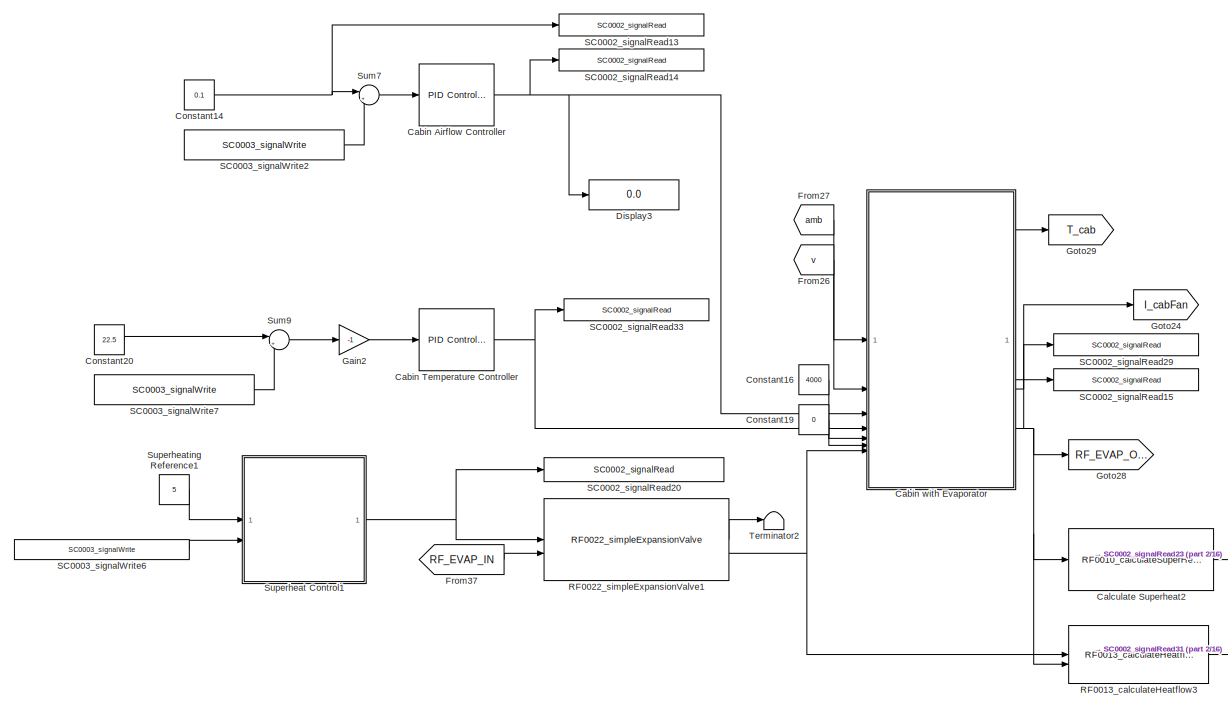
[diagram: root canvas - part 1/16, top center region]
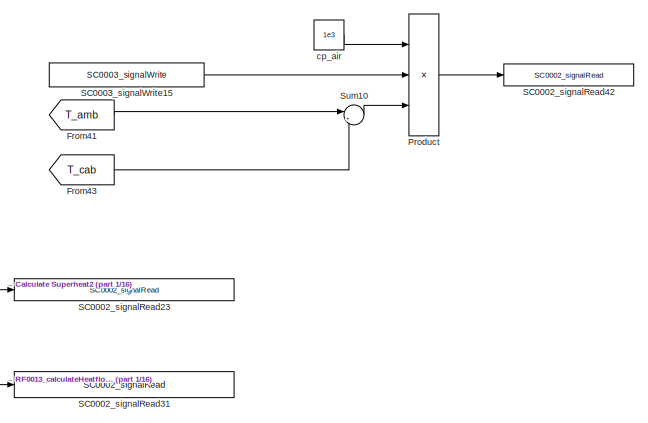
[diagram: root canvas - part 2/16, top right region]
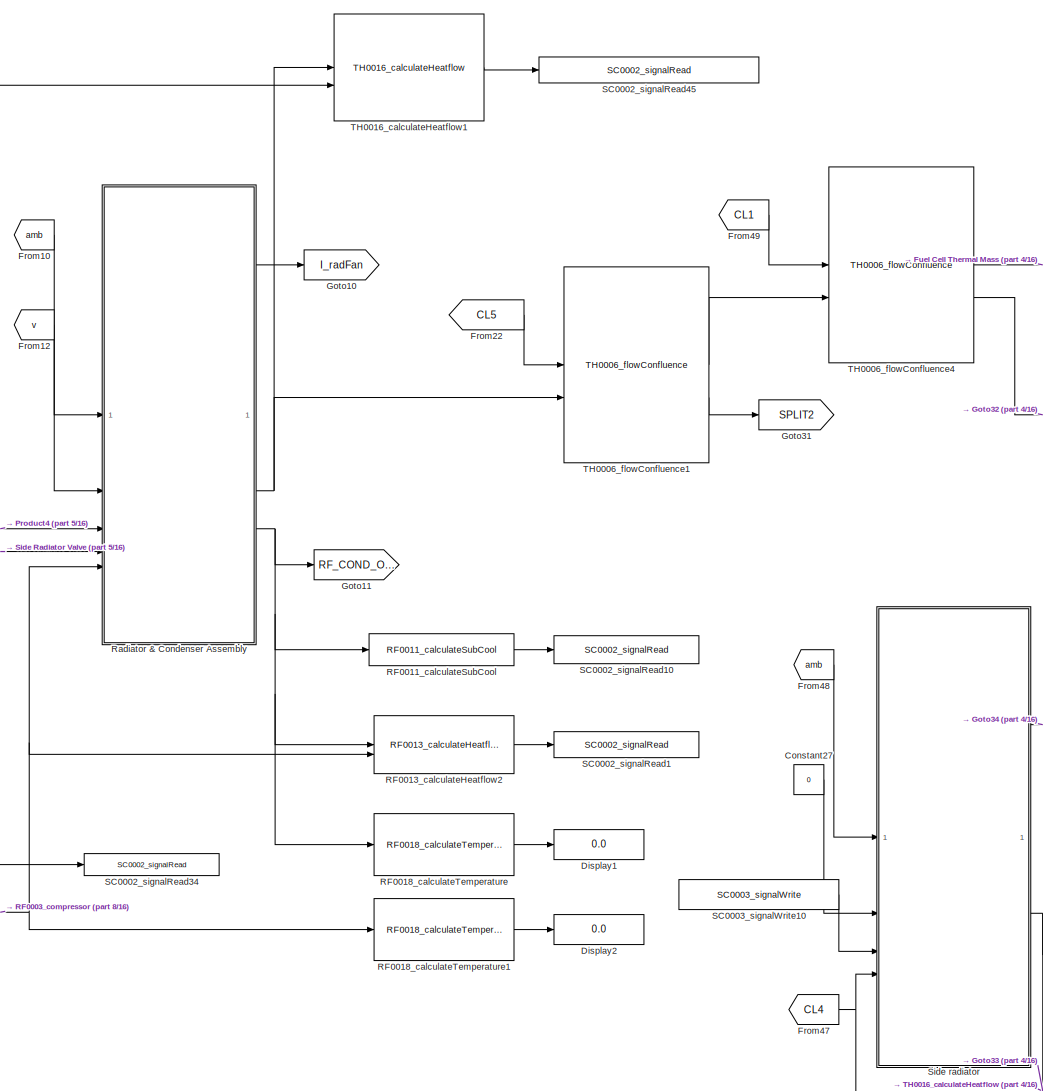
[diagram: root canvas - part 3/16, middle right region]
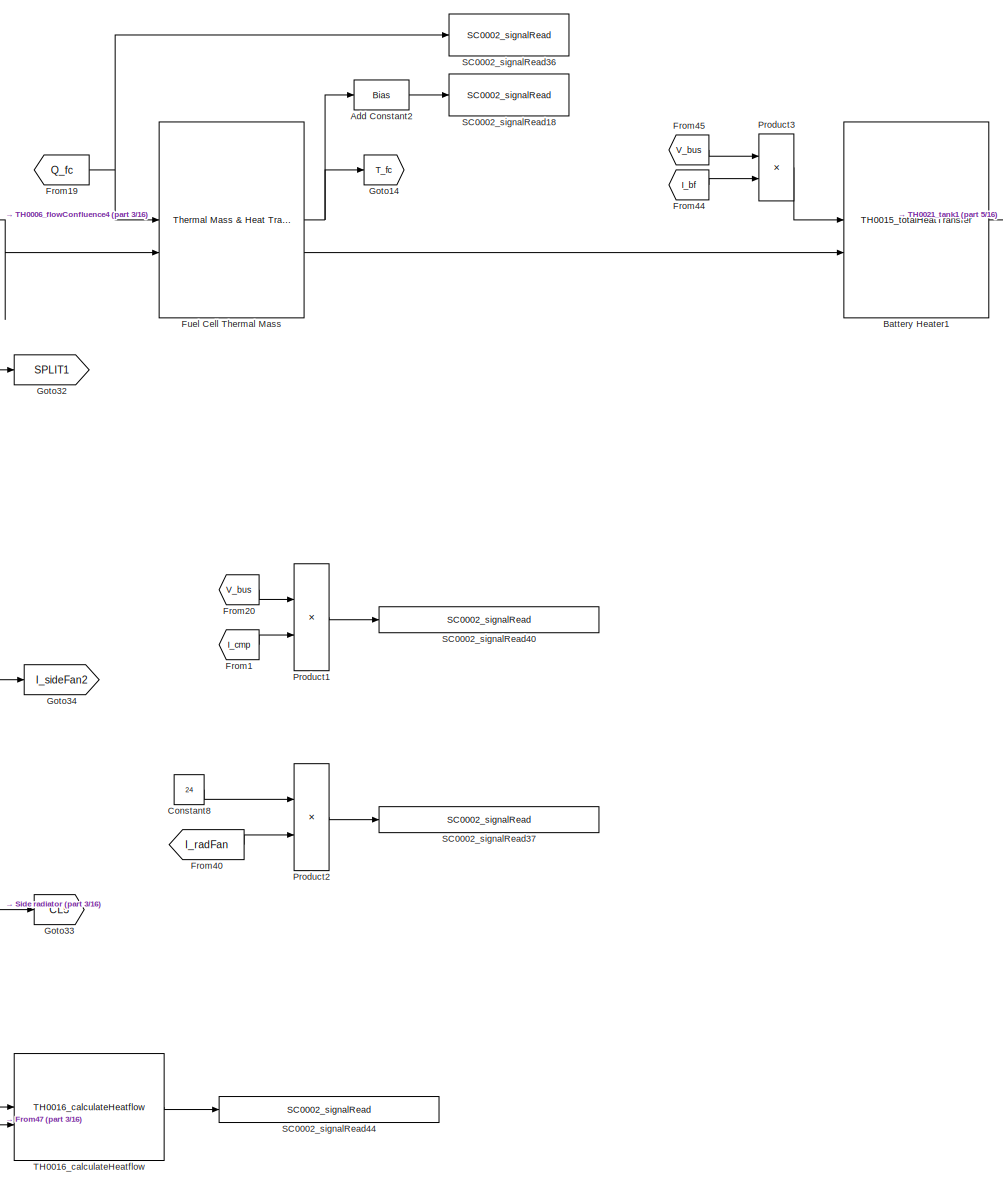
[diagram: root canvas - part 4/16, middle right region]
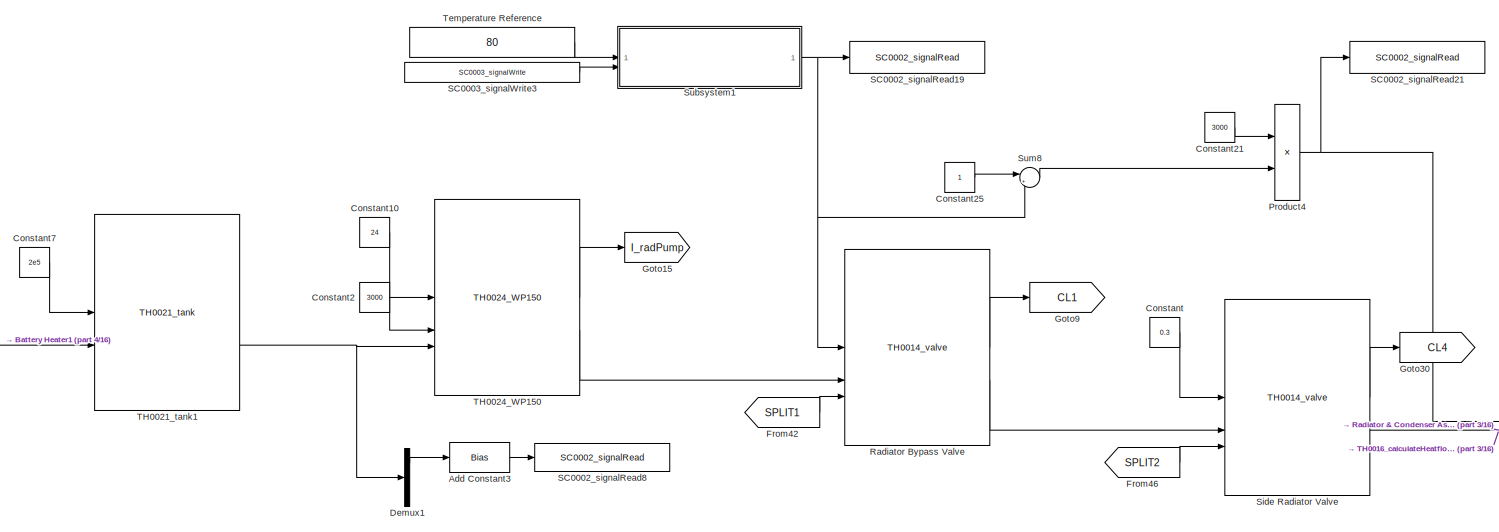
[diagram: root canvas - part 5/16, top center region]
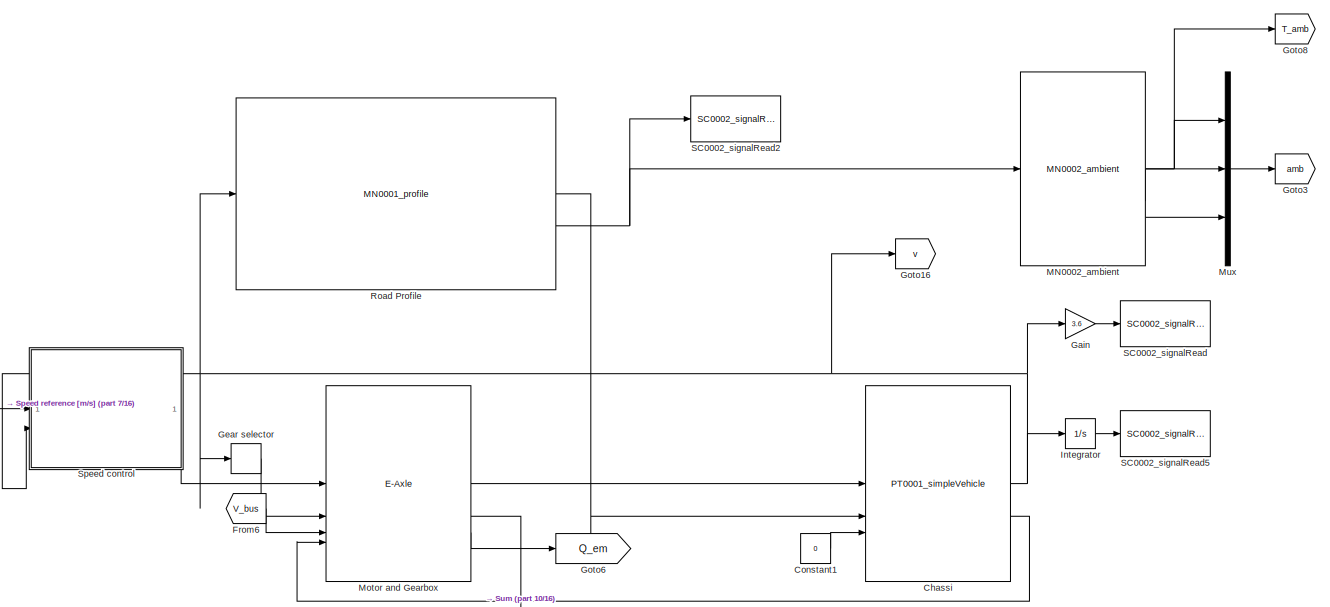
[diagram: root canvas - part 6/16, middle left region]
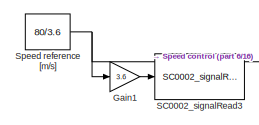
[diagram: root canvas - part 7/16, middle left region]
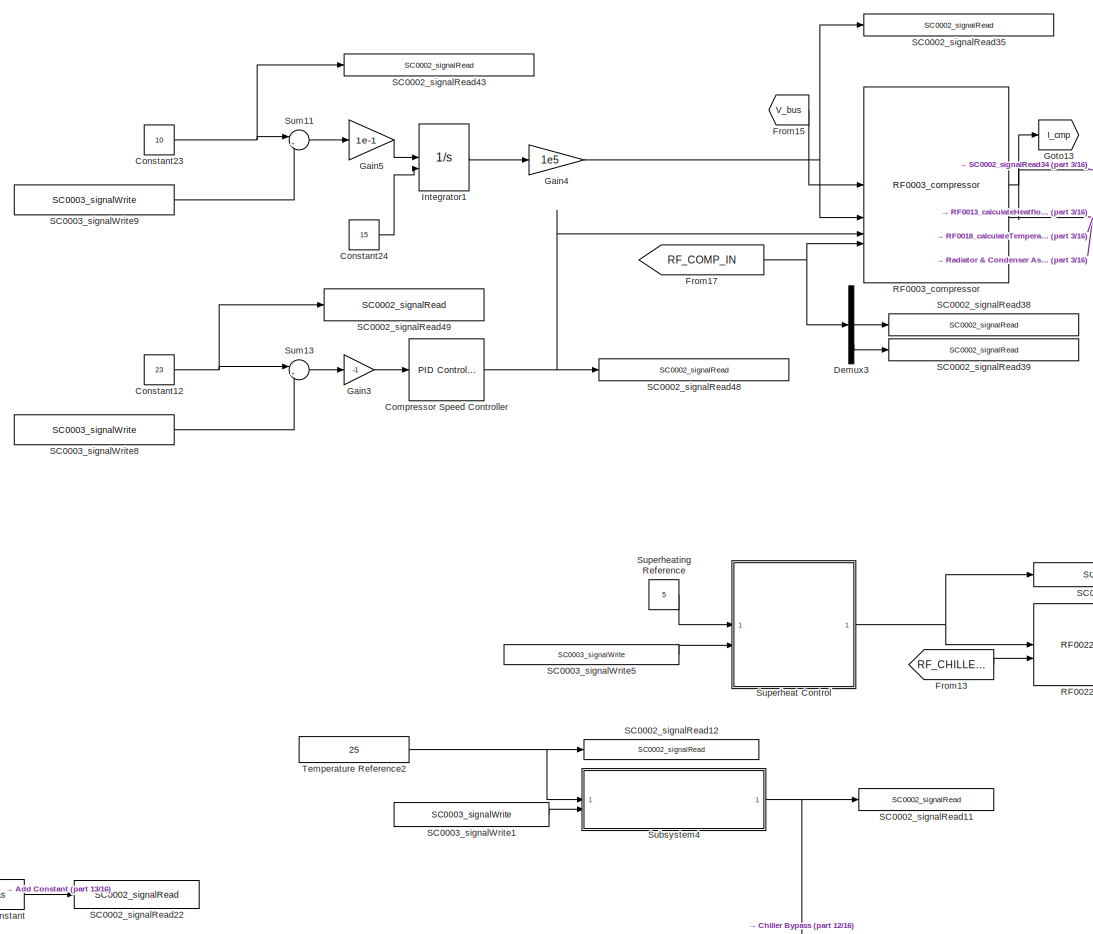
[diagram: root canvas - part 8/16, central region]
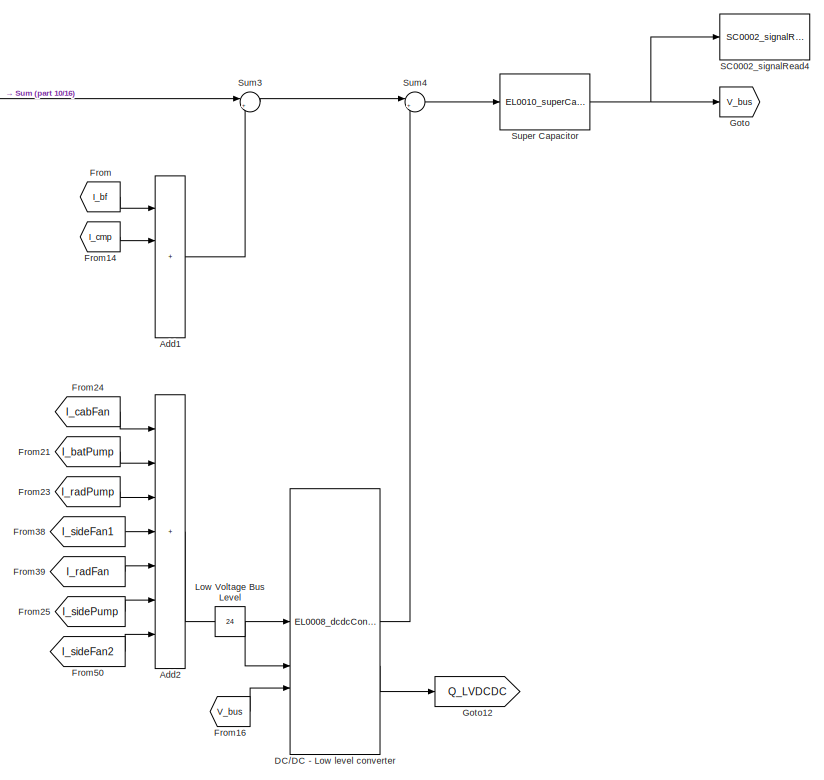
[diagram: root canvas - part 9/16, middle left region]
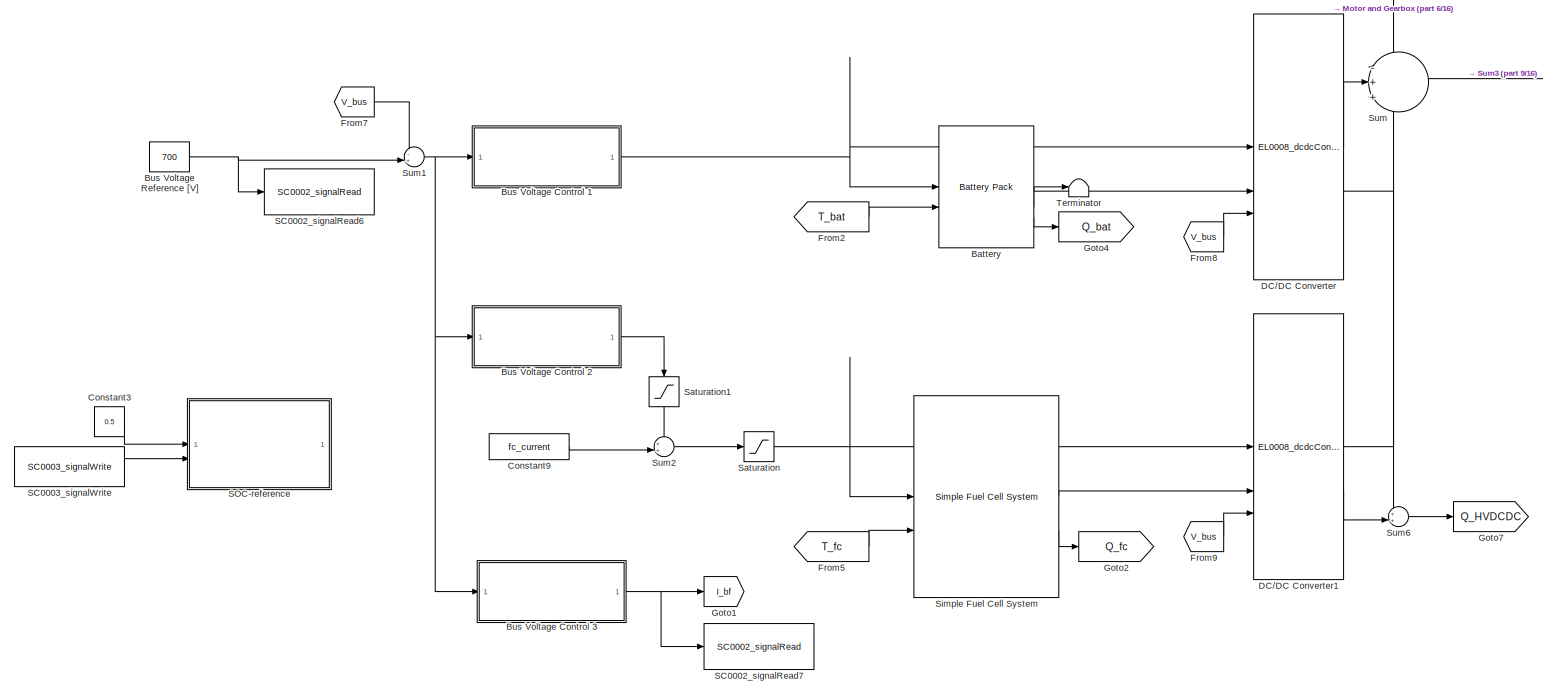
[diagram: root canvas - part 10/16, middle left region]
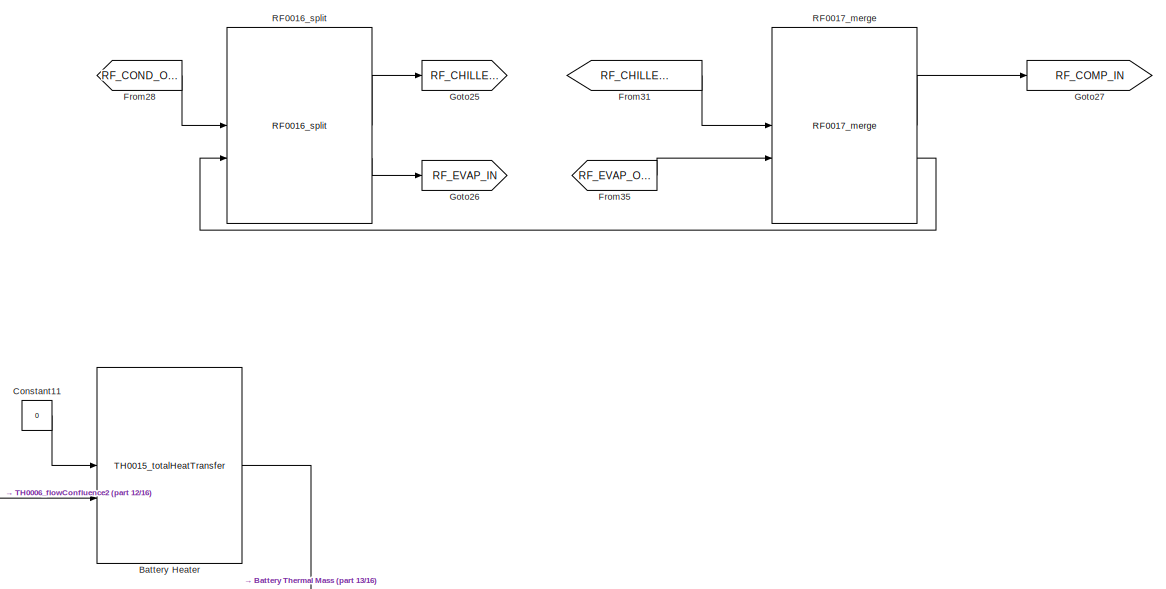
[diagram: root canvas - part 11/16, middle right region]
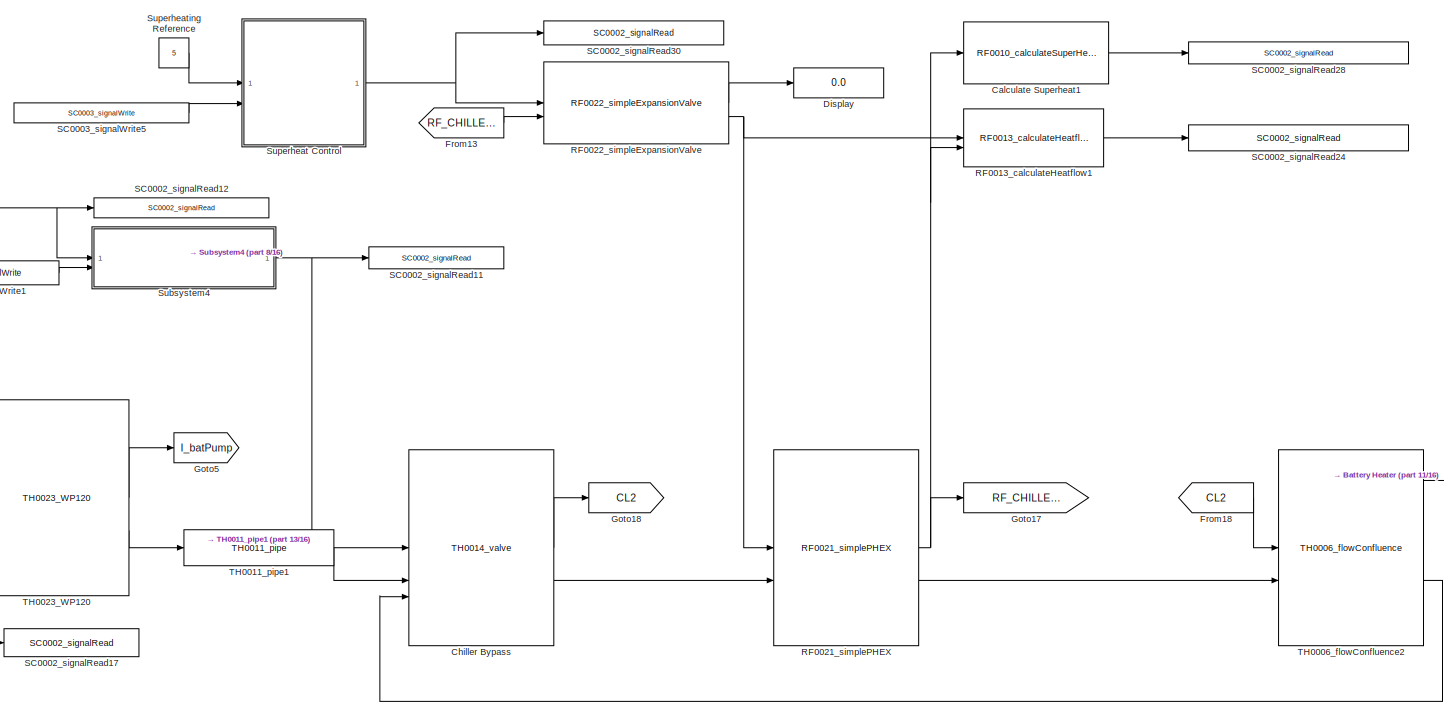
[diagram: root canvas - part 12/16, middle right region]
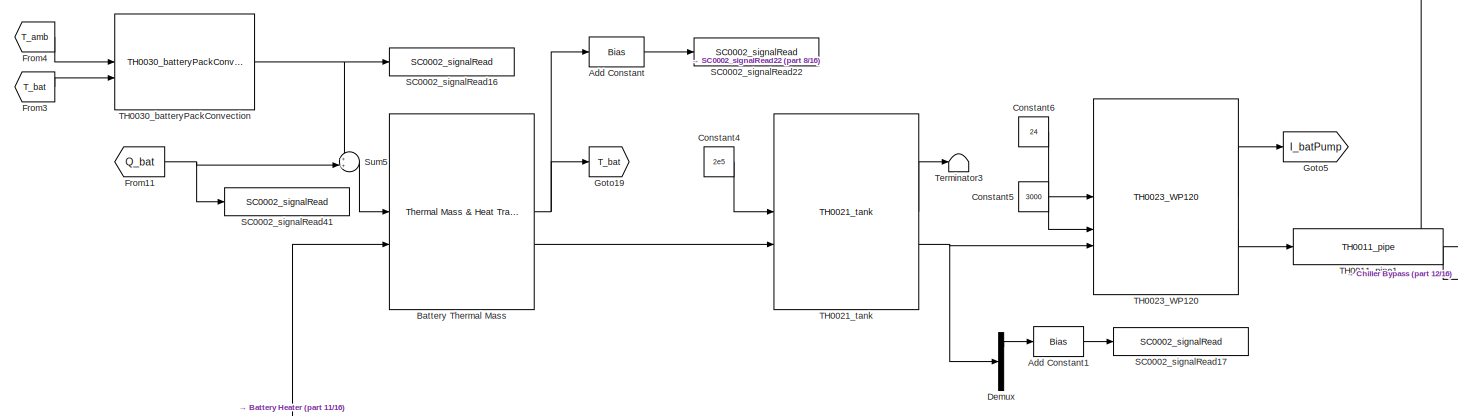
[diagram: root canvas - part 13/16, central region]
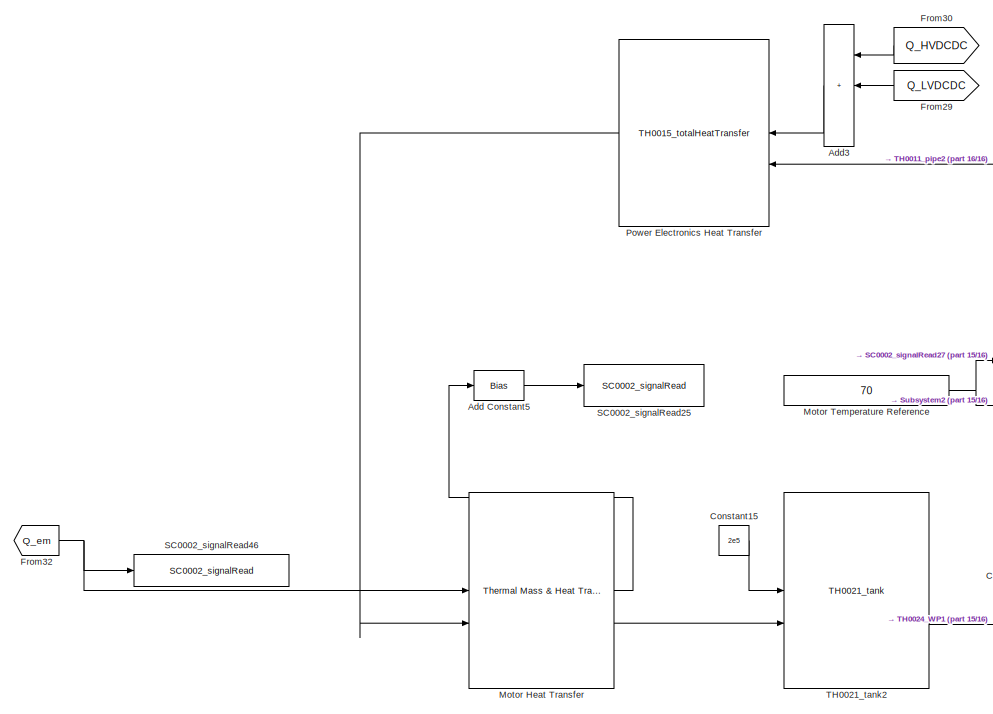
[diagram: root canvas - part 14/16, bottom center region]
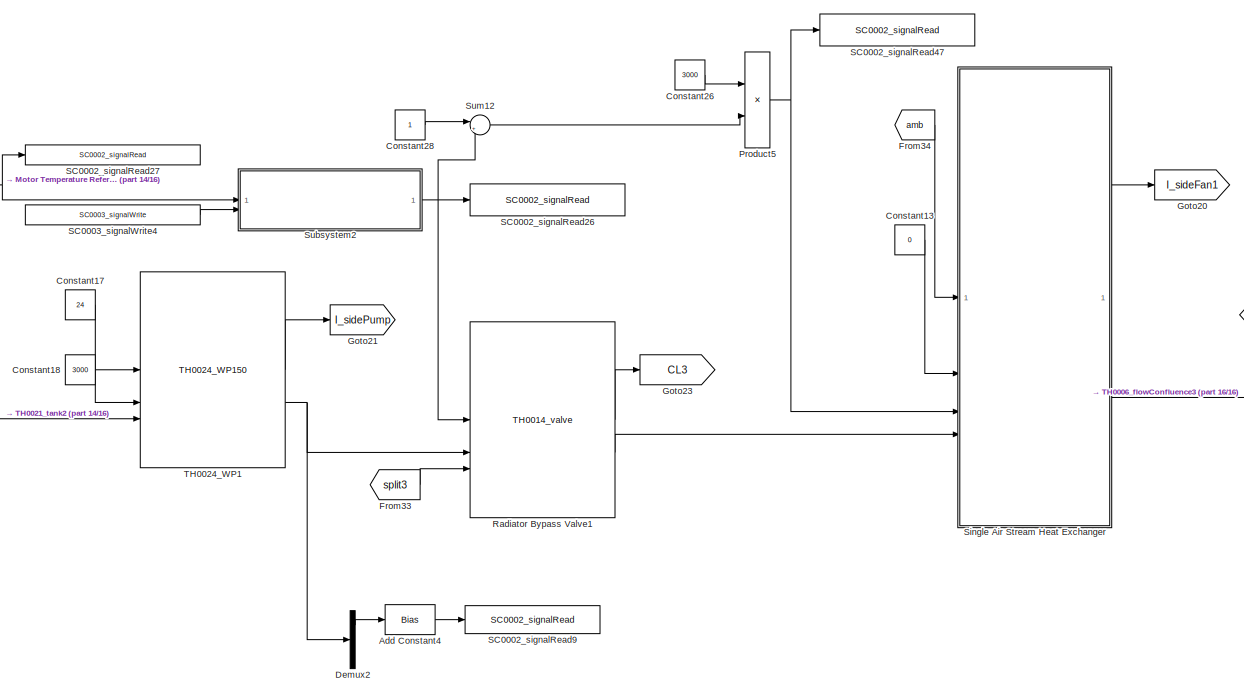
[diagram: root canvas - part 15/16, bottom right region]
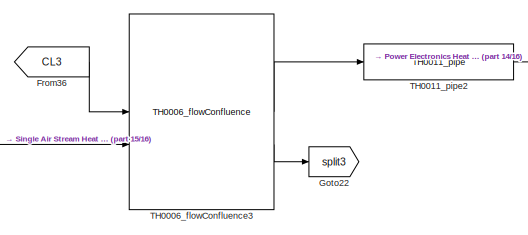
[diagram: root canvas - part 16/16, bottom right region]
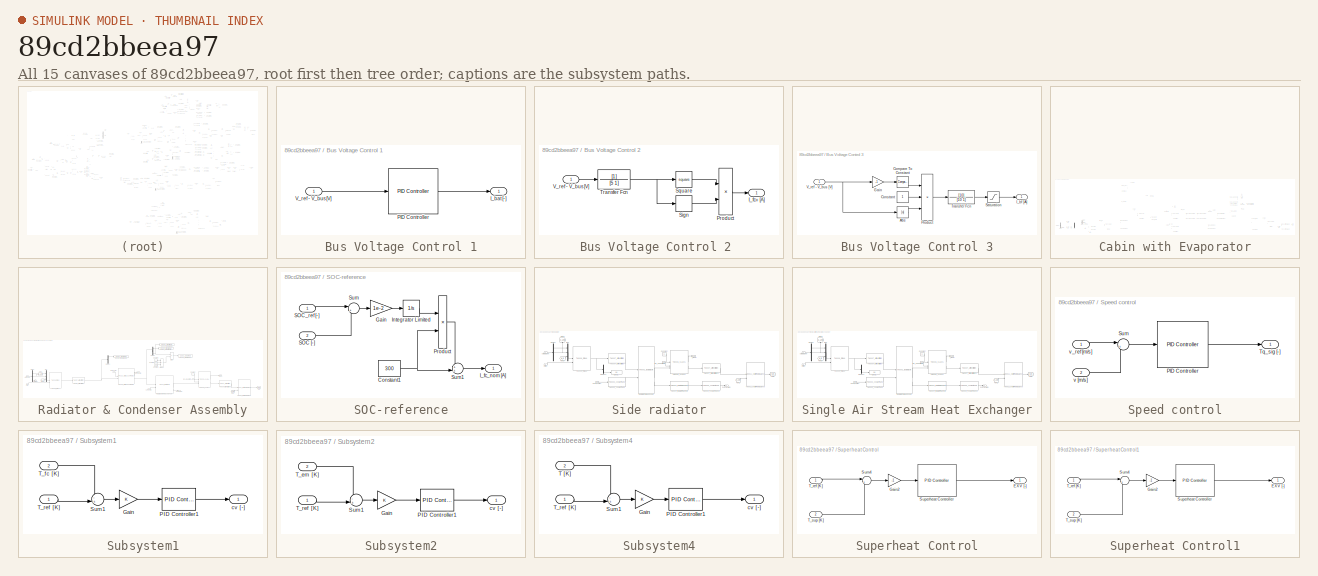
[diagram: thumbnail index - all 15 canvases of the model, root first then tree order]
MODEL slx_89cd2bbeea97
KIND model
CONFIG AbsTol = auto
CONFIG EnableMultiTasking = off
CONFIG FixedStep = auto
CONFIG MaxStep = 1
CONFIG MinStep = auto
CONFIG RelTol = 1e-3
CONFIG SampleTimeConstraint = Unconstrained
CONFIG SolverName = ode23tb
CONFIG StartTime = 0.0
CONFIG StopTime = 20e3
BLOCK [Bias] Add Constant
  Bias = -273.15
  SaturateOnIntegerOverflow = off
BLOCK [Bias] Add Constant1
  Bias = -273.15
  SaturateOnIntegerOverflow = off
BLOCK [Bias] Add Constant2
  Bias = -273.15
  SaturateOnIntegerOverflow = off
BLOCK [Bias] Add Constant3
  Bias = -273.15
  SaturateOnIntegerOverflow = off
BLOCK [Bias] Add Constant4
  Bias = -273.15
  SaturateOnIntegerOverflow = off
BLOCK [Bias] Add Constant5
  Bias = -273.15
  SaturateOnIntegerOverflow = off
BLOCK [Sum] Add1
  IconShape = rectangular
  Inputs = ++++
BLOCK [Sum] Add2
  IconShape = rectangular
  Inputs = +++++++
BLOCK [Sum] Add3
  IconShape = rectangular
  Inputs = +++
  NameLocation = top
BLOCK [Reference] Battery  REF=component_lib/Battery Pack  (lib defined in slx_7b23c5cf3aa6)
  SourceBlock = component_lib/Battery Pack
BLOCK [Reference] Battery Heater  REF=component_lib/Thermal Systems/TH0015_totalHeatTransfer  (lib defined in slx_7b23c5cf3aa6)
  SourceBlock = component_lib/Thermal Systems/TH0015_totalHeatTransfer
BLOCK [Reference] Battery Heater1  REF=component_lib/Thermal Systems/TH0015_totalHeatTransfer  (lib defined in slx_7b23c5cf3aa6)
  SourceBlock = component_lib/Thermal Systems/TH0015_totalHeatTransfer
BLOCK [Reference] Battery Thermal Mass  REF=component_lib/Thermal Mass & Heat Transfer  (lib defined in slx_7b23c5cf3aa6)
  SourceBlock = component_lib/Thermal Mass & Heat Transfer
BLOCK [SubSystem] Bus Voltage Control 1
BLOCK [Outport] Bus Voltage Control 1/I_bat [-]
BLOCK [Reference] Bus Voltage Control 1/PID Controller  REF=slpidlib/PID Controller
  SourceBlock = slpidlib/PID Controller
  SourceType = PID 1dof
BLOCK [Inport] Bus Voltage Control 1/V_ref - V_bus [V]
BLOCK [SubSystem] Bus Voltage Control 2 
BLOCK [Outport] Bus Voltage Control 2 /I_fc+ [A]
BLOCK [Product] Bus Voltage Control 2 /Product
BLOCK [Signum] Bus Voltage Control 2 /Sign
BLOCK [Math] Bus Voltage Control 2 /Square
  Operator = square
BLOCK [TransferFcn] Bus Voltage Control 2 /Transfer Fcn
  Denominator = [5 1]
BLOCK [Inport] Bus Voltage Control 2 /V_ref - V_bus [V]
BLOCK [SubSystem] Bus Voltage Control 3
BLOCK [Abs] Bus Voltage Control 3/Abs
  SaturateOnIntegerOverflow = off
BLOCK [Reference] Bus Voltage Control 3/Compare To Constant  REF=simulink/Logic and Bit
Operations/Compare
To Constant
  SourceBlock = simulink/Logic and Bit\nOperations/Compare\nTo Constant
  SourceType = Compare To Constant
BLOCK [Constant] Bus Voltage Control 3/Constant
BLOCK [Gain] Bus Voltage Control 3/Gain
  Gain = -1
BLOCK [Outport] Bus Voltage Control 3/I_bf [A]
BLOCK [Product] Bus Voltage Control 3/Product
  Inputs = 3
BLOCK [Saturate] Bus Voltage Control 3/Saturation
  LowerLimit = 0
  UpperLimit = 1000
BLOCK [TransferFcn] Bus Voltage Control 3/Transfer Fcn
  Denominator = [10 1]
  Numerator = [10]
BLOCK [Inport] Bus Voltage Control 3/V_ref - V_bus [V]
BLOCK [Constant] Bus Voltage Reference [V]
  Value = 700
BLOCK [Reference] Cabin Airflow Controller  REF=slpidlib/PID Controller
  LibrarySourceBlock = simulink/Continuous/PID Controller
  SourceBlock = slpidlib/PID Controller
  SourceType = PID 1dof
BLOCK [Reference] Cabin Temperature Controller  REF=slpidlib/PID Controller
  LibrarySourceBlock = simulink/Continuous/PID Controller
  SourceBlock = slpidlib/PID Controller
  SourceType = PID 1dof
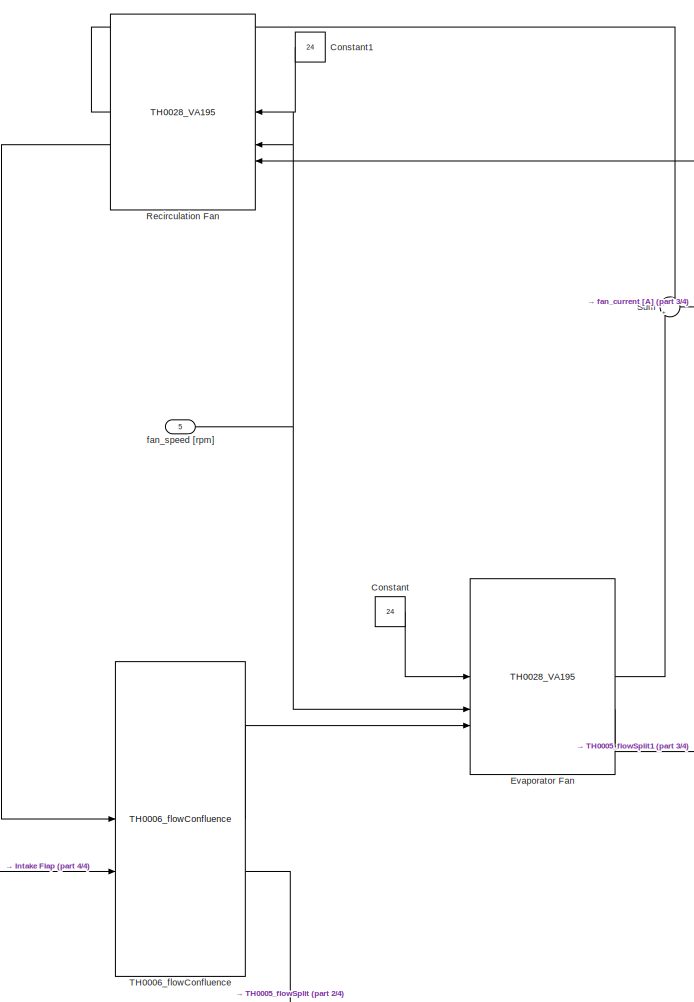
[diagram: Cabin with Evaporator - part 1/4, left side, full height]
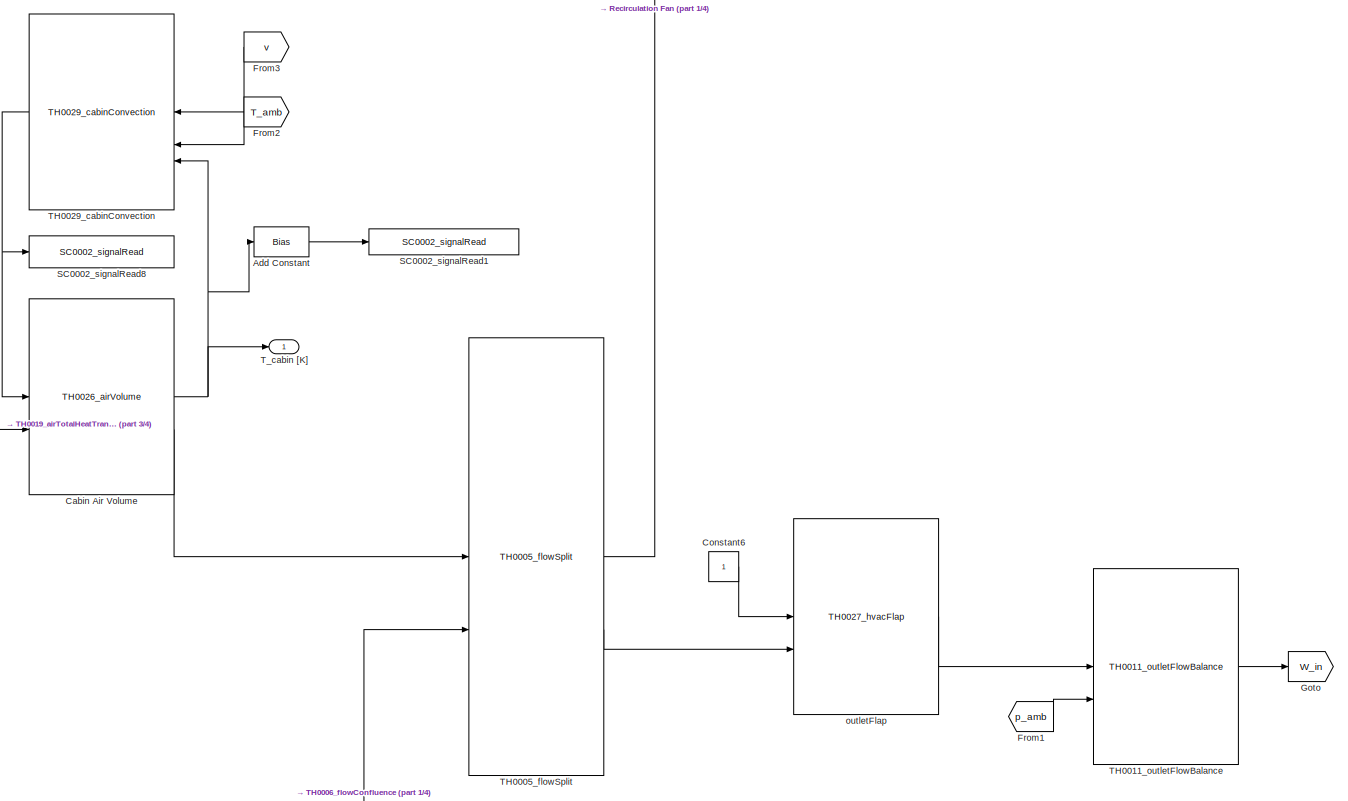
[diagram: Cabin with Evaporator - part 2/4, middle right region]
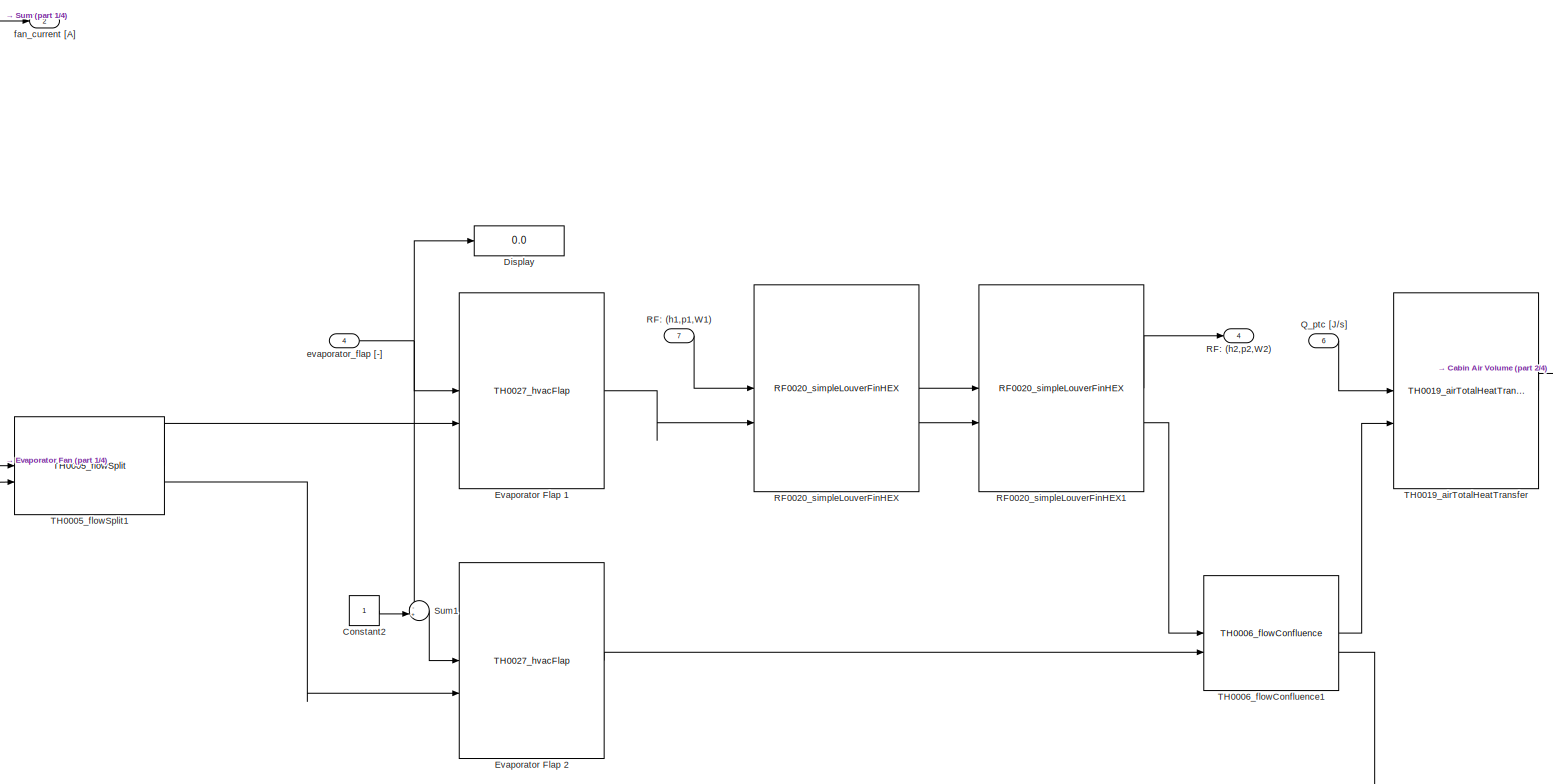
[diagram: Cabin with Evaporator - part 3/4, central region]
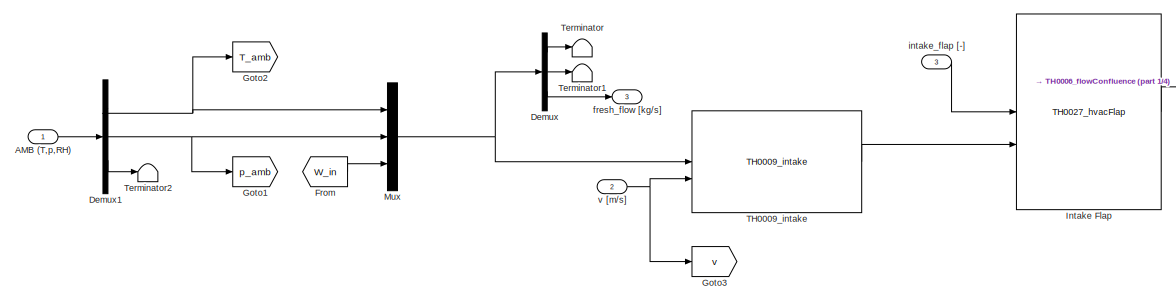
[diagram: Cabin with Evaporator - part 4/4, bottom left region]
BLOCK [SubSystem] Cabin with Evaporator
BLOCK [Inport] Cabin with Evaporator/AMB (T,p,RH)
BLOCK [Bias] Cabin with Evaporator/Add Constant
  Bias = -273.15
  SaturateOnIntegerOverflow = off
BLOCK [Reference] Cabin with Evaporator/Cabin Air Volume  REF=component_lib/Thermal Systems/TH0026_airVolume  (lib defined in slx_7b23c5cf3aa6)
  SourceBlock = component_lib/Thermal Systems/TH0026_airVolume
BLOCK [Constant] Cabin with Evaporator/Constant
  Value = 24
BLOCK [Constant] Cabin with Evaporator/Constant1
  NameLocation = top
  Value = 24
BLOCK [Constant] Cabin with Evaporator/Constant2
BLOCK [Constant] Cabin with Evaporator/Constant6
BLOCK [Demux] Cabin with Evaporator/Demux
  Outputs = 3
BLOCK [Demux] Cabin with Evaporator/Demux1
  Outputs = 3
BLOCK [Display] Cabin with Evaporator/Display
  Decimation = 1
BLOCK [Reference] Cabin with Evaporator/Evaporator Fan  REF=component_lib/Thermal Systems/TH0028_VA195  (lib defined in slx_7b23c5cf3aa6)
  LibrarySourceBlock = component_lib/Thermal Systems/TH0023_WP120
  SourceBlock = component_lib/Thermal Systems/TH0028_VA195
BLOCK [Reference] Cabin with Evaporator/Evaporator Flap 1  REF=component_lib/Thermal Systems/TH0027_hvacFlap  (lib defined in slx_7b23c5cf3aa6)
  SourceBlock = component_lib/Thermal Systems/TH0027_hvacFlap
BLOCK [Reference] Cabin with Evaporator/Evaporator Flap 2  REF=component_lib/Thermal Systems/TH0027_hvacFlap  (lib defined in slx_7b23c5cf3aa6)
  SourceBlock = component_lib/Thermal Systems/TH0027_hvacFlap
BLOCK [From] Cabin with Evaporator/From
  GotoTag = W_in
BLOCK [From] Cabin with Evaporator/From1
  GotoTag = p_amb
BLOCK [From] Cabin with Evaporator/From2
  GotoTag = T_amb
  NameLocation = top
BLOCK [From] Cabin with Evaporator/From3
  GotoTag = v
  NameLocation = top
BLOCK [Goto] Cabin with Evaporator/Goto
  GotoTag = W_in
BLOCK [Goto] Cabin with Evaporator/Goto1
  GotoTag = p_amb
BLOCK [Goto] Cabin with Evaporator/Goto2
  GotoTag = T_amb
BLOCK [Goto] Cabin with Evaporator/Goto3
  GotoTag = v
BLOCK [Reference] Cabin with Evaporator/Intake Flap  REF=component_lib/Thermal Systems/TH0027_hvacFlap  (lib defined in slx_7b23c5cf3aa6)
  SourceBlock = component_lib/Thermal Systems/TH0027_hvacFlap
BLOCK [Mux] Cabin with Evaporator/Mux
  DisplayOption = bar
  Inputs = 3
BLOCK [Inport] Cabin with Evaporator/Q_ptc [J//s]
  Port = 6
BLOCK [Reference] Cabin with Evaporator/RF0020_simpleLouverFinHEX  REF=component_lib/Thermal Systems/RF0020_simpleLouverFinHEX  (lib defined in slx_7b23c5cf3aa6)
  SourceBlock = component_lib/Thermal Systems/RF0020_simpleLouverFinHEX
BLOCK [Reference] Cabin with Evaporator/RF0020_simpleLouverFinHEX1  REF=component_lib/Thermal Systems/RF0020_simpleLouverFinHEX  (lib defined in slx_7b23c5cf3aa6)
  SourceBlock = component_lib/Thermal Systems/RF0020_simpleLouverFinHEX
BLOCK [Inport] Cabin with Evaporator/RF: (h1,p1,W1)
  Port = 7
BLOCK [Outport] Cabin with Evaporator/RF: (h2,p2,W2)
  Port = 4
BLOCK [Reference] Cabin with Evaporator/Recirculation Fan  REF=component_lib/Thermal Systems/TH0028_VA195  (lib defined in slx_7b23c5cf3aa6)
  LibrarySourceBlock = component_lib/Thermal Systems/TH0023_WP120
  NameLocation = top
  SourceBlock = component_lib/Thermal Systems/TH0028_VA195
BLOCK [Reference] Cabin with Evaporator/SC0002_signalRead1  REF=component_lib/Data & Control/SC0002_signalRead  (lib defined in slx_7b23c5cf3aa6)
  SourceBlock = component_lib/Data & Control/SC0002_signalRead
BLOCK [Reference] Cabin with Evaporator/SC0002_signalRead8  REF=component_lib/Data & Control/SC0002_signalRead  (lib defined in slx_7b23c5cf3aa6)
  SourceBlock = component_lib/Data & Control/SC0002_signalRead
BLOCK [Sum] Cabin with Evaporator/Sum
  Inputs = +|+
BLOCK [Sum] Cabin with Evaporator/Sum1
  Inputs = -+|
BLOCK [Reference] Cabin with Evaporator/TH0005_flowSplit  REF=component_lib/Thermal Systems/TH0005_flowSplit  (lib defined in slx_7b23c5cf3aa6)
  SourceBlock = component_lib/Thermal Systems/TH0005_flowSplit
BLOCK [Reference] Cabin with Evaporator/TH0005_flowSplit1  REF=component_lib/Thermal Systems/TH0005_flowSplit  (lib defined in slx_7b23c5cf3aa6)
  SourceBlock = component_lib/Thermal Systems/TH0005_flowSplit
BLOCK [Reference] Cabin with Evaporator/TH0006_flowConfluence  REF=component_lib/Thermal Systems/TH0006_flowConfluence  (lib defined in slx_7b23c5cf3aa6)
  SourceBlock = component_lib/Thermal Systems/TH0006_flowConfluence
BLOCK [Reference] Cabin with Evaporator/TH0006_flowConfluence1  REF=component_lib/Thermal Systems/TH0006_flowConfluence  (lib defined in slx_7b23c5cf3aa6)
  SourceBlock = component_lib/Thermal Systems/TH0006_flowConfluence
BLOCK [Reference] Cabin with Evaporator/TH0009_intake  REF=component_lib/Thermal Systems/TH0009_intake  (lib defined in slx_7b23c5cf3aa6)
  SourceBlock = component_lib/Thermal Systems/TH0009_intake
BLOCK [Reference] Cabin with Evaporator/TH0011_outletFlowBalance  REF=component_lib/Thermal Systems/TH0011_outletFlowBalance  (lib defined in slx_7b23c5cf3aa6)
  SourceBlock = component_lib/Thermal Systems/TH0011_outletFlowBalance
BLOCK [Reference] Cabin with Evaporator/TH0019_airTotalHeatTransfer  REF=component_lib/Thermal Systems/TH0019_airTotalHeatTransfer  (lib defined in slx_7b23c5cf3aa6)
  SourceBlock = component_lib/Thermal Systems/TH0019_airTotalHeatTransfer
BLOCK [Reference] Cabin with Evaporator/TH0029_cabinConvection  REF=component_lib/Thermal Systems/TH0029_cabinConvection  (lib defined in slx_7b23c5cf3aa6)
  NameLocation = top
  SourceBlock = component_lib/Thermal Systems/TH0029_cabinConvection
BLOCK [Outport] Cabin with Evaporator/T_cabin [K]
BLOCK [Terminator] Cabin with Evaporator/Terminator
BLOCK [Terminator] Cabin with Evaporator/Terminator1
BLOCK [Terminator] Cabin with Evaporator/Terminator2
BLOCK [Inport] Cabin with Evaporator/evaporator_flap [-]
  Port = 4
BLOCK [Outport] Cabin with Evaporator/fan_current [A]
  Port = 2
BLOCK [Inport] Cabin with Evaporator/fan_speed [rpm]
  Port = 5
BLOCK [Outport] Cabin with Evaporator/fresh_flow [kg//s]
  Port = 3
BLOCK [Inport] Cabin with Evaporator/intake_flap [-]
  Port = 3
BLOCK [Reference] Cabin with Evaporator/outletFlap  REF=component_lib/Thermal Systems/TH0027_hvacFlap  (lib defined in slx_7b23c5cf3aa6)
  SourceBlock = component_lib/Thermal Systems/TH0027_hvacFlap
BLOCK [Inport] Cabin with Evaporator/v [m//s]
  Port = 2
BLOCK [Reference] Calculate Superheat1  REF=component_lib/Thermal Systems/RF0010_calculateSuperHeat  (lib defined in slx_7b23c5cf3aa6)
  SourceBlock = component_lib/Thermal Systems/RF0010_calculateSuperHeat
BLOCK [Reference] Calculate Superheat2  REF=component_lib/Thermal Systems/RF0010_calculateSuperHeat  (lib defined in slx_7b23c5cf3aa6)
  SourceBlock = component_lib/Thermal Systems/RF0010_calculateSuperHeat
BLOCK [Reference] Chassi  REF=component_lib/Powertrain/PT0001_simpleVehicle  (lib defined in slx_7b23c5cf3aa6)
  SourceBlock = component_lib/Powertrain/PT0001_simpleVehicle
BLOCK [Reference] Chiller Bypass  REF=component_lib/Thermal Systems/TH0014_valve  (lib defined in slx_7b23c5cf3aa6)
  SourceBlock = component_lib/Thermal Systems/TH0014_valve
BLOCK [Reference] Compressor Speed Controller  REF=slpidlib/PID Controller
  LibrarySourceBlock = simulink/Continuous/PID Controller
  SourceBlock = slpidlib/PID Controller
  SourceType = PID 1dof
BLOCK [Constant] Constant
  Value = 0.3
BLOCK [Constant] Constant1
  Value = 0
BLOCK [Constant] Constant10
  Value = 24
BLOCK [Constant] Constant11
  Value = 0
BLOCK [Constant] Constant12
  Value = 23
BLOCK [Constant] Constant13
  Value = 0
BLOCK [Constant] Constant14
  Value = 0.1
BLOCK [Constant] Constant15
  Value = 2e5
BLOCK [Constant] Constant16
  Value = 4000
BLOCK [Constant] Constant17
  Value = 24
BLOCK [Constant] Constant18
  Value = 3000
BLOCK [Constant] Constant19
  Value = 0
BLOCK [Constant] Constant2
  Value = 3000
BLOCK [Constant] Constant20
  Value = 22.5
BLOCK [Constant] Constant21
  Value = 3000
BLOCK [Constant] Constant23
  Value = 10
BLOCK [Constant] Constant24
  Value = 15
BLOCK [Constant] Constant25
BLOCK [Constant] Constant26
  Value = 3000
BLOCK [Constant] Constant27
  Value = 0
BLOCK [Constant] Constant28
BLOCK [Constant] Constant3
  Value = 0.5
BLOCK [Constant] Constant4
  Value = 2e5
BLOCK [Constant] Constant5
  Value = 3000
BLOCK [Constant] Constant6
  Value = 24
BLOCK [Constant] Constant7
  Value = 2e5
BLOCK [Constant] Constant8
  Value = 24
BLOCK [Constant] Constant9
  Value = fc_current
BLOCK [Reference] DC//DC - Low level converter  REF=component_lib/Electrochemistry/EL0008_dcdcConverter  (lib defined in slx_7b23c5cf3aa6)
  SourceBlock = component_lib/Electrochemistry/EL0008_dcdcConverter
BLOCK [Reference] DC//DC Converter  REF=component_lib/Electrochemistry/EL0008_dcdcConverter  (lib defined in slx_7b23c5cf3aa6)
  SourceBlock = component_lib/Electrochemistry/EL0008_dcdcConverter
BLOCK [Reference] DC//DC Converter1  REF=component_lib/Electrochemistry/EL0008_dcdcConverter  (lib defined in slx_7b23c5cf3aa6)
  SourceBlock = component_lib/Electrochemistry/EL0008_dcdcConverter
BLOCK [Demux] Demux
  Outputs = 3
BLOCK [Demux] Demux1
  Outputs = 3
BLOCK [Demux] Demux2
  Outputs = 3
BLOCK [Demux] Demux3
  Outputs = 3
BLOCK [Display] Display
  Decimation = 1
BLOCK [Display] Display1
  Decimation = 1
BLOCK [Display] Display2
  Decimation = 1
BLOCK [Display] Display3
  Decimation = 1
BLOCK [From] From
  GotoTag = I_bf
BLOCK [From] From1
  GotoTag = I_cmp
BLOCK [From] From10
  GotoTag = amb
BLOCK [From] From11
  GotoTag = Q_bat
BLOCK [From] From12
  GotoTag = v
BLOCK [From] From13
  GotoTag = RF_CHILLER_IN
BLOCK [From] From14
  GotoTag = I_cmp
BLOCK [From] From15
  GotoTag = V_bus
BLOCK [From] From16
  GotoTag = V_bus
BLOCK [From] From17
  GotoTag = RF_COMP_IN
BLOCK [From] From18
  GotoTag = CL2
BLOCK [From] From19
  GotoTag = Q_fc
BLOCK [From] From2
  GotoTag = T_bat
BLOCK [From] From20
  GotoTag = V_bus
BLOCK [From] From21
  GotoTag = I_batPump
BLOCK [From] From22
  GotoTag = CL5
BLOCK [From] From23
  GotoTag = I_radPump
BLOCK [From] From24
  GotoTag = I_cabFan
BLOCK [From] From25
  GotoTag = I_sidePump
BLOCK [From] From26
  GotoTag = v
BLOCK [From] From27
  GotoTag = amb
BLOCK [From] From28
  GotoTag = RF_COND_OUT
BLOCK [From] From29
  GotoTag = Q_LVDCDC
  NameLocation = top
BLOCK [From] From3
  GotoTag = T_bat
BLOCK [From] From30
  GotoTag = Q_HVDCDC
  NameLocation = top
BLOCK [From] From31
  GotoTag = RF_CHILLER_OUT
BLOCK [From] From32
  GotoTag = Q_em
BLOCK [From] From33
  GotoTag = split3
BLOCK [From] From34
  GotoTag = amb
BLOCK [From] From35
  GotoTag = RF_EVAP_OUT
BLOCK [From] From36
  GotoTag = CL3
BLOCK [From] From37
  GotoTag = RF_EVAP_IN
BLOCK [From] From38
  GotoTag = I_sideFan1
BLOCK [From] From39
  GotoTag = I_radFan
BLOCK [From] From4
  GotoTag = T_amb
BLOCK [From] From40
  GotoTag = I_radFan
BLOCK [From] From41
  GotoTag = T_amb
BLOCK [From] From42
  GotoTag = SPLIT1
BLOCK [From] From43
  GotoTag = T_cab
BLOCK [From] From44
  GotoTag = I_bf
BLOCK [From] From45
  GotoTag = V_bus
BLOCK [From] From46
  GotoTag = SPLIT2
BLOCK [From] From47
  GotoTag = CL4
BLOCK [From] From48
  GotoTag = amb
BLOCK [From] From49
  GotoTag = CL1
BLOCK [From] From5
  GotoTag = T_fc
BLOCK [From] From50
  GotoTag = I_sideFan2
BLOCK [From] From6
  GotoTag = V_bus
BLOCK [From] From7
  GotoTag = V_bus
BLOCK [From] From8
  GotoTag = V_bus
BLOCK [From] From9
  GotoTag = V_bus
BLOCK [Reference] Fuel Cell Thermal Mass  REF=component_lib/Thermal Mass & Heat Transfer  (lib defined in slx_7b23c5cf3aa6)
  SourceBlock = component_lib/Thermal Mass & Heat Transfer
BLOCK [Gain] Gain
  Gain = 3.6
BLOCK [Gain] Gain1
  Gain = 3.6
BLOCK [Gain] Gain2
  Gain = -1
BLOCK [Gain] Gain3
  Gain = -1
BLOCK [Gain] Gain4
  Gain = 1e5
BLOCK [Gain] Gain5
  Gain = 1e-1
BLOCK [Relay] Gear selector
  OffOutputValue = 3
  OffSwitchValue = 21.5
  OnOutputValue = 4
  OnSwitchValue = 22
BLOCK [Goto] Goto
  GotoTag = V_bus
BLOCK [Goto] Goto1
  GotoTag = I_bf
BLOCK [Goto] Goto10
  GotoTag = I_radFan
BLOCK [Goto] Goto11
  GotoTag = RF_COND_OUT
BLOCK [Goto] Goto12
  GotoTag = Q_LVDCDC
  NameLocation = top
BLOCK [Goto] Goto13
  GotoTag = I_cmp
BLOCK [Goto] Goto14
  GotoTag = T_fc
BLOCK [Goto] Goto15
  GotoTag = I_radPump
BLOCK [Goto] Goto16
  GotoTag = v
BLOCK [Goto] Goto17
  GotoTag = RF_CHILLER_OUT
BLOCK [Goto] Goto18
  GotoTag = CL2
BLOCK [Goto] Goto19
  GotoTag = T_bat
BLOCK [Goto] Goto2
  GotoTag = Q_fc
BLOCK [Goto] Goto20
  GotoTag = I_sideFan1
BLOCK [Goto] Goto21
  GotoTag = I_sidePump
BLOCK [Goto] Goto22
  GotoTag = split3
BLOCK [Goto] Goto23
  GotoTag = CL3
BLOCK [Goto] Goto24
  GotoTag = I_cabFan
BLOCK [Goto] Goto25
  GotoTag = RF_CHILLER_IN
BLOCK [Goto] Goto26
  GotoTag = RF_EVAP_IN
BLOCK [Goto] Goto27
  GotoTag = RF_COMP_IN
BLOCK [Goto] Goto28
  GotoTag = RF_EVAP_OUT
BLOCK [Goto] Goto29
  GotoTag = T_cab
BLOCK [Goto] Goto3
  GotoTag = amb
BLOCK [Goto] Goto30
  GotoTag = CL4
BLOCK [Goto] Goto31
  GotoTag = SPLIT2
BLOCK [Goto] Goto32
  GotoTag = SPLIT1
BLOCK [Goto] Goto33
  GotoTag = CL5
BLOCK [Goto] Goto34
  GotoTag = I_sideFan2
BLOCK [Goto] Goto4
  GotoTag = Q_bat
BLOCK [Goto] Goto5
  GotoTag = I_batPump
BLOCK [Goto] Goto6
  GotoTag = Q_em
BLOCK [Goto] Goto7
  GotoTag = Q_HVDCDC
BLOCK [Goto] Goto8
  GotoTag = T_amb
BLOCK [Goto] Goto9
  GotoTag = CL1
BLOCK [Integrator] Integrator
BLOCK [Integrator] Integrator1
  InitialConditionSource = external
  LimitOutput = on
  LowerSaturationLimit = 8
  UpperSaturationLimit = 30
BLOCK [Constant] Low Voltage Bus Level
  Value = 24
BLOCK [Reference] MN0002_ambient  REF=component_lib/Mission/MN0002_ambient  (lib defined in slx_7b23c5cf3aa6)
  SourceBlock = component_lib/Mission/MN0002_ambient
BLOCK [Reference] Motor Heat Transfer  REF=component_lib/Thermal Mass & Heat Transfer  (lib defined in slx_7b23c5cf3aa6)
  SourceBlock = component_lib/Thermal Mass & Heat Transfer
BLOCK [Constant] Motor Temperature Reference
  NameLocation = top
  Value = 70
BLOCK [Reference] Motor and Gearbox  REF=component_lib/E-Axle  (lib defined in slx_7b23c5cf3aa6)
  SourceBlock = component_lib/E-Axle
BLOCK [Mux] Mux
  DisplayOption = bar
  Inputs = 3
BLOCK [Reference] Power Electronics Heat Transfer  REF=component_lib/Thermal Systems/TH0015_totalHeatTransfer  (lib defined in slx_7b23c5cf3aa6)
  NameLocation = top
  SourceBlock = component_lib/Thermal Systems/TH0015_totalHeatTransfer
BLOCK [Product] Product
  Inputs = ***
BLOCK [Product] Product1
BLOCK [Product] Product2
BLOCK [Product] Product3
BLOCK [Product] Product4
BLOCK [Product] Product5
BLOCK [Reference] RF0003_compressor  REF=component_lib/Thermal Systems/RF0003_compressor  (lib defined in slx_7b23c5cf3aa6)
  SourceBlock = component_lib/Thermal Systems/RF0003_compressor
BLOCK [Reference] RF0011_calculateSubCool  REF=component_lib/Thermal Systems/RF0011_calculateSubCool  (lib defined in slx_7b23c5cf3aa6)
  SourceBlock = component_lib/Thermal Systems/RF0011_calculateSubCool
BLOCK [Reference] RF0013_calculateHeatflow1  REF=component_lib/Thermal Systems/RF0013_calculateHeatflow  (lib defined in slx_7b23c5cf3aa6)
  SourceBlock = component_lib/Thermal Systems/RF0013_calculateHeatflow
BLOCK [Reference] RF0013_calculateHeatflow2  REF=component_lib/Thermal Systems/RF0013_calculateHeatflow  (lib defined in slx_7b23c5cf3aa6)
  SourceBlock = component_lib/Thermal Systems/RF0013_calculateHeatflow
BLOCK [Reference] RF0013_calculateHeatflow3  REF=component_lib/Thermal Systems/RF0013_calculateHeatflow  (lib defined in slx_7b23c5cf3aa6)
  SourceBlock = component_lib/Thermal Systems/RF0013_calculateHeatflow
BLOCK [Reference] RF0016_split  REF=component_lib/Thermal Systems/RF0016_split  (lib defined in slx_7b23c5cf3aa6)
  SourceBlock = component_lib/Thermal Systems/RF0016_split
BLOCK [Reference] RF0017_merge  REF=component_lib/Thermal Systems/RF0017_merge  (lib defined in slx_7b23c5cf3aa6)
  SourceBlock = component_lib/Thermal Systems/RF0017_merge
BLOCK [Reference] RF0018_calculateTemperature  REF=component_lib/Thermal Systems/RF0018_calculateTemperature  (lib defined in slx_7b23c5cf3aa6)
  SourceBlock = component_lib/Thermal Systems/RF0018_calculateTemperature
BLOCK [Reference] RF0018_calculateTemperature1  REF=component_lib/Thermal Systems/RF0018_calculateTemperature  (lib defined in slx_7b23c5cf3aa6)
  SourceBlock = component_lib/Thermal Systems/RF0018_calculateTemperature
BLOCK [Reference] RF0021_simplePHEX  REF=component_lib/Thermal Systems/RF0021_simplePHEX  (lib defined in slx_7b23c5cf3aa6)
  SourceBlock = component_lib/Thermal Systems/RF0021_simplePHEX
BLOCK [Reference] RF0022_simpleExpansionValve  REF=component_lib/Thermal Systems/RF0022_simpleExpansionValve  (lib defined in slx_7b23c5cf3aa6)
  SourceBlock = component_lib/Thermal Systems/RF0022_simpleExpansionValve
BLOCK [Reference] RF0022_simpleExpansionValve1  REF=component_lib/Thermal Systems/RF0022_simpleExpansionValve  (lib defined in slx_7b23c5cf3aa6)
  SourceBlock = component_lib/Thermal Systems/RF0022_simpleExpansionValve
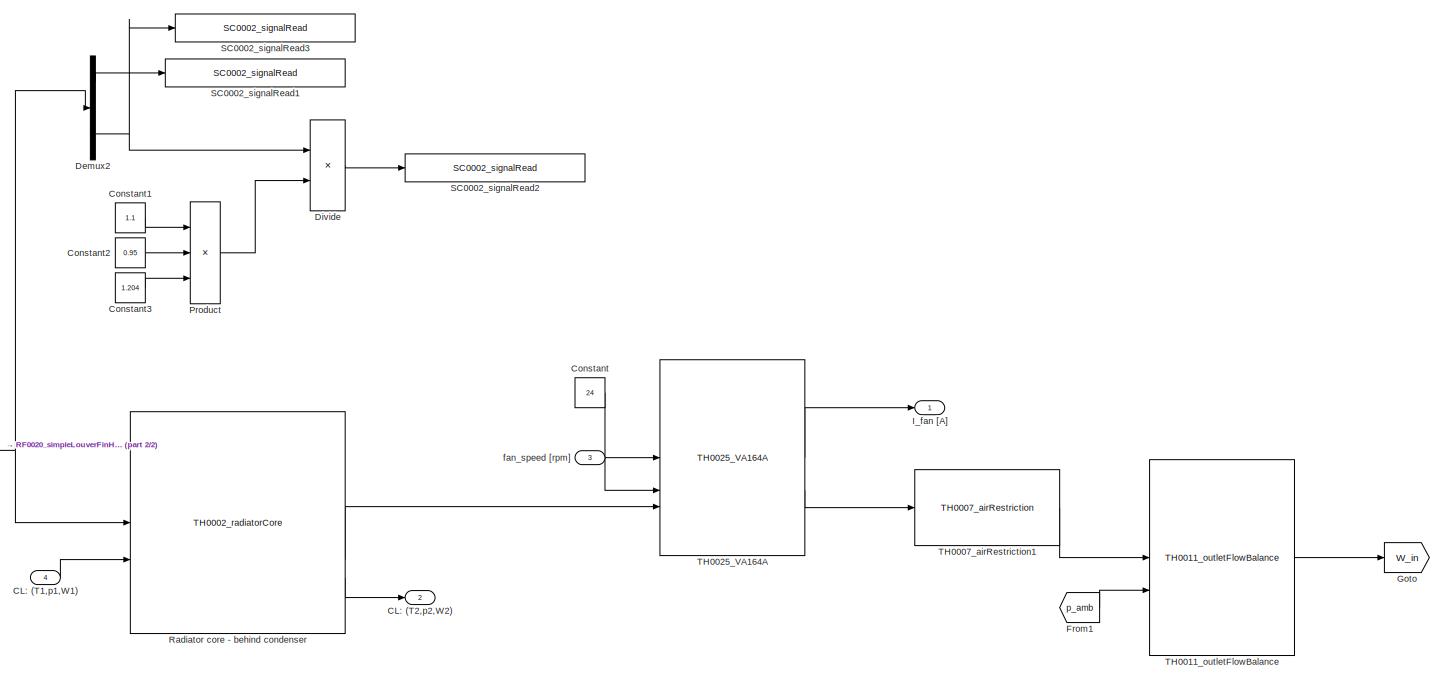
[diagram: Radiator & Condenser Assembly - part 1/2, right side, full height]
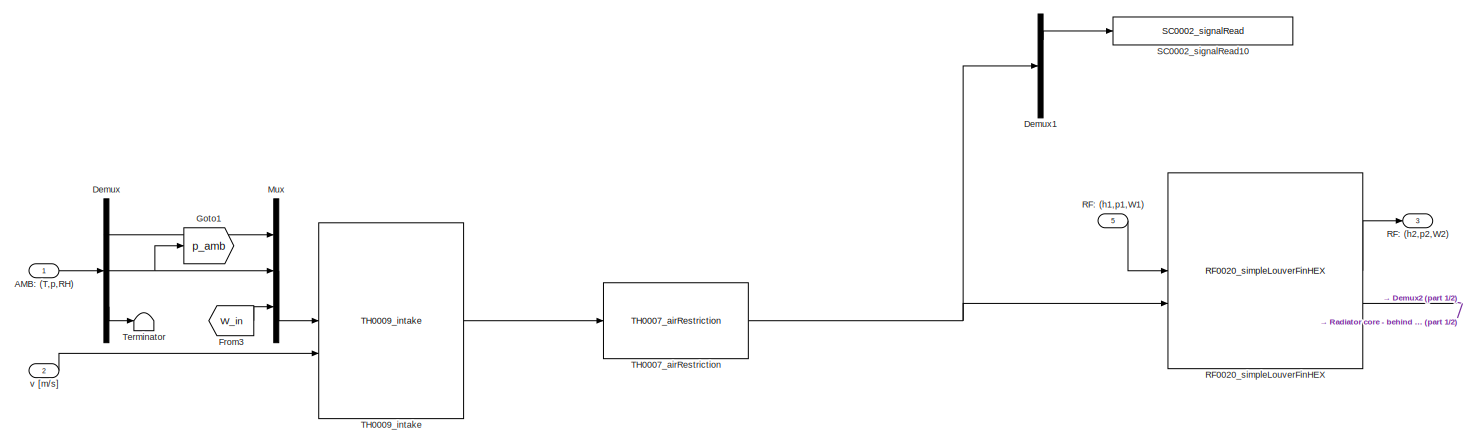
[diagram: Radiator & Condenser Assembly - part 2/2, middle left region]
BLOCK [SubSystem] Radiator & Condenser Assembly
BLOCK [Inport] Radiator & Condenser Assembly/AMB: (T,p,RH)
BLOCK [Inport] Radiator & Condenser Assembly/CL: (T1,p1,W1)
  Port = 4
BLOCK [Outport] Radiator & Condenser Assembly/CL: (T2,p2,W2)
  Port = 2
BLOCK [Constant] Radiator & Condenser Assembly/Constant
  Value = 24
BLOCK [Constant] Radiator & Condenser Assembly/Constant1
  Value = 1.1
BLOCK [Constant] Radiator & Condenser Assembly/Constant2
  Value = 0.95
BLOCK [Constant] Radiator & Condenser Assembly/Constant3
  Value = 1.204
BLOCK [Demux] Radiator & Condenser Assembly/Demux
  Outputs = 3
BLOCK [Demux] Radiator & Condenser Assembly/Demux1
  Outputs = 3
BLOCK [Demux] Radiator & Condenser Assembly/Demux2
  Outputs = 3
BLOCK [Product] Radiator & Condenser Assembly/Divide
  Inputs = */
BLOCK [From] Radiator & Condenser Assembly/From1
  GotoTag = p_amb
BLOCK [From] Radiator & Condenser Assembly/From3
  GotoTag = W_in
BLOCK [Goto] Radiator & Condenser Assembly/Goto
  GotoTag = W_in
BLOCK [Goto] Radiator & Condenser Assembly/Goto1
  GotoTag = p_amb
BLOCK [Outport] Radiator & Condenser Assembly/I_fan [A]
BLOCK [Mux] Radiator & Condenser Assembly/Mux
  DisplayOption = bar
  Inputs = 3
BLOCK [Product] Radiator & Condenser Assembly/Product
  Inputs = 3
BLOCK [Reference] Radiator & Condenser Assembly/RF0020_simpleLouverFinHEX  REF=component_lib/Thermal Systems/RF0020_simpleLouverFinHEX  (lib defined in slx_7b23c5cf3aa6)
  SourceBlock = component_lib/Thermal Systems/RF0020_simpleLouverFinHEX
BLOCK [Inport] Radiator & Condenser Assembly/RF: (h1,p1,W1)
  Port = 5
BLOCK [Outport] Radiator & Condenser Assembly/RF: (h2,p2,W2)
  Port = 3
BLOCK [Reference] Radiator & Condenser Assembly/Radiator core - behind condenser  REF=component_lib/Thermal Systems/TH0002_radiatorCore  (lib defined in slx_7b23c5cf3aa6)
  SourceBlock = component_lib/Thermal Systems/TH0002_radiatorCore
BLOCK [Reference] Radiator & Condenser Assembly/SC0002_signalRead1  REF=component_lib/Data & Control/SC0002_signalRead  (lib defined in slx_7b23c5cf3aa6)
  SourceBlock = component_lib/Data & Control/SC0002_signalRead
BLOCK [Reference] Radiator & Condenser Assembly/SC0002_signalRead10  REF=component_lib/Data & Control/SC0002_signalRead  (lib defined in slx_7b23c5cf3aa6)
  SourceBlock = component_lib/Data & Control/SC0002_signalRead
BLOCK [Reference] Radiator & Condenser Assembly/SC0002_signalRead2  REF=component_lib/Data & Control/SC0002_signalRead  (lib defined in slx_7b23c5cf3aa6)
  SourceBlock = component_lib/Data & Control/SC0002_signalRead
BLOCK [Reference] Radiator & Condenser Assembly/SC0002_signalRead3  REF=component_lib/Data & Control/SC0002_signalRead  (lib defined in slx_7b23c5cf3aa6)
  SourceBlock = component_lib/Data & Control/SC0002_signalRead
BLOCK [Reference] Radiator & Condenser Assembly/TH0007_airRestriction  REF=component_lib/Thermal Systems/TH0007_airRestriction  (lib defined in slx_7b23c5cf3aa6)
  SourceBlock = component_lib/Thermal Systems/TH0007_airRestriction
BLOCK [Reference] Radiator & Condenser Assembly/TH0007_airRestriction1  REF=component_lib/Thermal Systems/TH0007_airRestriction  (lib defined in slx_7b23c5cf3aa6)
  SourceBlock = component_lib/Thermal Systems/TH0007_airRestriction
BLOCK [Reference] Radiator & Condenser Assembly/TH0009_intake  REF=component_lib/Thermal Systems/TH0009_intake  (lib defined in slx_7b23c5cf3aa6)
  SourceBlock = component_lib/Thermal Systems/TH0009_intake
BLOCK [Reference] Radiator & Condenser Assembly/TH0011_outletFlowBalance  REF=component_lib/Thermal Systems/TH0011_outletFlowBalance  (lib defined in slx_7b23c5cf3aa6)
  SourceBlock = component_lib/Thermal Systems/TH0011_outletFlowBalance
BLOCK [Reference] Radiator & Condenser Assembly/TH0025_VA164A  REF=component_lib/Thermal Systems/TH0025_VA164A  (lib defined in slx_7b23c5cf3aa6)
  LibrarySourceBlock = component_lib/Thermal Systems/TH0023_WP120
  SourceBlock = component_lib/Thermal Systems/TH0025_VA164A
BLOCK [Terminator] Radiator & Condenser Assembly/Terminator
BLOCK [Inport] Radiator & Condenser Assembly/fan_speed [rpm]
  Port = 3
BLOCK [Inport] Radiator & Condenser Assembly/v [m//s]
  Port = 2
BLOCK [Reference] Radiator Bypass Valve  REF=component_lib/Thermal Systems/TH0014_valve  (lib defined in slx_7b23c5cf3aa6)
  SourceBlock = component_lib/Thermal Systems/TH0014_valve
BLOCK [Reference] Radiator Bypass Valve1  REF=component_lib/Thermal Systems/TH0014_valve  (lib defined in slx_7b23c5cf3aa6)
  SourceBlock = component_lib/Thermal Systems/TH0014_valve
BLOCK [Reference] Road Profile  REF=component_lib/Mission/MN0001_profile  (lib defined in slx_7b23c5cf3aa6)
  SourceBlock = component_lib/Mission/MN0001_profile
BLOCK [Reference] SC0002_signalRead  REF=component_lib/Data & Control/SC0002_signalRead  (lib defined in slx_7b23c5cf3aa6)
  SourceBlock = component_lib/Data & Control/SC0002_signalRead
BLOCK [Reference] SC0002_signalRead1  REF=component_lib/Data & Control/SC0002_signalRead  (lib defined in slx_7b23c5cf3aa6)
  SourceBlock = component_lib/Data & Control/SC0002_signalRead
BLOCK [Reference] SC0002_signalRead10  REF=component_lib/Data & Control/SC0002_signalRead  (lib defined in slx_7b23c5cf3aa6)
  SourceBlock = component_lib/Data & Control/SC0002_signalRead
BLOCK [Reference] SC0002_signalRead11  REF=component_lib/Data & Control/SC0002_signalRead  (lib defined in slx_7b23c5cf3aa6)
  SourceBlock = component_lib/Data & Control/SC0002_signalRead
BLOCK [Reference] SC0002_signalRead12  REF=component_lib/Data & Control/SC0002_signalRead  (lib defined in slx_7b23c5cf3aa6)
  SourceBlock = component_lib/Data & Control/SC0002_signalRead
BLOCK [Reference] SC0002_signalRead13  REF=component_lib/Data & Control/SC0002_signalRead  (lib defined in slx_7b23c5cf3aa6)
  SourceBlock = component_lib/Data & Control/SC0002_signalRead
BLOCK [Reference] SC0002_signalRead14  REF=component_lib/Data & Control/SC0002_signalRead  (lib defined in slx_7b23c5cf3aa6)
  SourceBlock = component_lib/Data & Control/SC0002_signalRead
BLOCK [Reference] SC0002_signalRead15  REF=component_lib/Data & Control/SC0002_signalRead  (lib defined in slx_7b23c5cf3aa6)
  SourceBlock = component_lib/Data & Control/SC0002_signalRead
BLOCK [Reference] SC0002_signalRead16  REF=component_lib/Data & Control/SC0002_signalRead  (lib defined in slx_7b23c5cf3aa6)
  SourceBlock = component_lib/Data & Control/SC0002_signalRead
BLOCK [Reference] SC0002_signalRead17  REF=component_lib/Data & Control/SC0002_signalRead  (lib defined in slx_7b23c5cf3aa6)
  SourceBlock = component_lib/Data & Control/SC0002_signalRead
BLOCK [Reference] SC0002_signalRead18  REF=component_lib/Data & Control/SC0002_signalRead  (lib defined in slx_7b23c5cf3aa6)
  SourceBlock = component_lib/Data & Control/SC0002_signalRead
BLOCK [Reference] SC0002_signalRead19  REF=component_lib/Data & Control/SC0002_signalRead  (lib defined in slx_7b23c5cf3aa6)
  SourceBlock = component_lib/Data & Control/SC0002_signalRead
BLOCK [Reference] SC0002_signalRead2  REF=component_lib/Data & Control/SC0002_signalRead  (lib defined in slx_7b23c5cf3aa6)
  SourceBlock = component_lib/Data & Control/SC0002_signalRead
BLOCK [Reference] SC0002_signalRead20  REF=component_lib/Data & Control/SC0002_signalRead  (lib defined in slx_7b23c5cf3aa6)
  SourceBlock = component_lib/Data & Control/SC0002_signalRead
BLOCK [Reference] SC0002_signalRead21  REF=component_lib/Data & Control/SC0002_signalRead  (lib defined in slx_7b23c5cf3aa6)
  SourceBlock = component_lib/Data & Control/SC0002_signalRead
BLOCK [Reference] SC0002_signalRead22  REF=component_lib/Data & Control/SC0002_signalRead  (lib defined in slx_7b23c5cf3aa6)
  SourceBlock = component_lib/Data & Control/SC0002_signalRead
BLOCK [Reference] SC0002_signalRead23  REF=component_lib/Data & Control/SC0002_signalRead  (lib defined in slx_7b23c5cf3aa6)
  SourceBlock = component_lib/Data & Control/SC0002_signalRead
BLOCK [Reference] SC0002_signalRead24  REF=component_lib/Data & Control/SC0002_signalRead  (lib defined in slx_7b23c5cf3aa6)
  SourceBlock = component_lib/Data & Control/SC0002_signalRead
BLOCK [Reference] SC0002_signalRead25  REF=component_lib/Data & Control/SC0002_signalRead  (lib defined in slx_7b23c5cf3aa6)
  SourceBlock = component_lib/Data & Control/SC0002_signalRead
BLOCK [Reference] SC0002_signalRead26  REF=component_lib/Data & Control/SC0002_signalRead  (lib defined in slx_7b23c5cf3aa6)
  SourceBlock = component_lib/Data & Control/SC0002_signalRead
BLOCK [Reference] SC0002_signalRead27  REF=component_lib/Data & Control/SC0002_signalRead  (lib defined in slx_7b23c5cf3aa6)
  SourceBlock = component_lib/Data & Control/SC0002_signalRead
BLOCK [Reference] SC0002_signalRead28  REF=component_lib/Data & Control/SC0002_signalRead  (lib defined in slx_7b23c5cf3aa6)
  SourceBlock = component_lib/Data & Control/SC0002_signalRead
BLOCK [Reference] SC0002_signalRead29  REF=component_lib/Data & Control/SC0002_signalRead  (lib defined in slx_7b23c5cf3aa6)
  SourceBlock = component_lib/Data & Control/SC0002_signalRead
BLOCK [Reference] SC0002_signalRead3  REF=component_lib/Data & Control/SC0002_signalRead  (lib defined in slx_7b23c5cf3aa6)
  SourceBlock = component_lib/Data & Control/SC0002_signalRead
BLOCK [Reference] SC0002_signalRead30  REF=component_lib/Data & Control/SC0002_signalRead  (lib defined in slx_7b23c5cf3aa6)
  SourceBlock = component_lib/Data & Control/SC0002_signalRead
BLOCK [Reference] SC0002_signalRead31  REF=component_lib/Data & Control/SC0002_signalRead  (lib defined in slx_7b23c5cf3aa6)
  SourceBlock = component_lib/Data & Control/SC0002_signalRead
BLOCK [Reference] SC0002_signalRead33  REF=component_lib/Data & Control/SC0002_signalRead  (lib defined in slx_7b23c5cf3aa6)
  SourceBlock = component_lib/Data & Control/SC0002_signalRead
BLOCK [Reference] SC0002_signalRead34  REF=component_lib/Data & Control/SC0002_signalRead  (lib defined in slx_7b23c5cf3aa6)
  SourceBlock = component_lib/Data & Control/SC0002_signalRead
BLOCK [Reference] SC0002_signalRead35  REF=component_lib/Data & Control/SC0002_signalRead  (lib defined in slx_7b23c5cf3aa6)
  SourceBlock = component_lib/Data & Control/SC0002_signalRead
BLOCK [Reference] SC0002_signalRead36  REF=component_lib/Data & Control/SC0002_signalRead  (lib defined in slx_7b23c5cf3aa6)
  SourceBlock = component_lib/Data & Control/SC0002_signalRead
BLOCK [Reference] SC0002_signalRead37  REF=component_lib/Data & Control/SC0002_signalRead  (lib defined in slx_7b23c5cf3aa6)
  SourceBlock = component_lib/Data & Control/SC0002_signalRead
BLOCK [Reference] SC0002_signalRead38  REF=component_lib/Data & Control/SC0002_signalRead  (lib defined in slx_7b23c5cf3aa6)
  SourceBlock = component_lib/Data & Control/SC0002_signalRead
BLOCK [Reference] SC0002_signalRead39  REF=component_lib/Data & Control/SC0002_signalRead  (lib defined in slx_7b23c5cf3aa6)
  SourceBlock = component_lib/Data & Control/SC0002_signalRead
BLOCK [Reference] SC0002_signalRead4  REF=component_lib/Data & Control/SC0002_signalRead  (lib defined in slx_7b23c5cf3aa6)
  SourceBlock = component_lib/Data & Control/SC0002_signalRead
BLOCK [Reference] SC0002_signalRead40  REF=component_lib/Data & Control/SC0002_signalRead  (lib defined in slx_7b23c5cf3aa6)
  SourceBlock = component_lib/Data & Control/SC0002_signalRead
BLOCK [Reference] SC0002_signalRead41  REF=component_lib/Data & Control/SC0002_signalRead  (lib defined in slx_7b23c5cf3aa6)
  SourceBlock = component_lib/Data & Control/SC0002_signalRead
BLOCK [Reference] SC0002_signalRead42  REF=component_lib/Data & Control/SC0002_signalRead  (lib defined in slx_7b23c5cf3aa6)
  SourceBlock = component_lib/Data & Control/SC0002_signalRead
BLOCK [Reference] SC0002_signalRead43  REF=component_lib/Data & Control/SC0002_signalRead  (lib defined in slx_7b23c5cf3aa6)
  SourceBlock = component_lib/Data & Control/SC0002_signalRead
BLOCK [Reference] SC0002_signalRead44  REF=component_lib/Data & Control/SC0002_signalRead  (lib defined in slx_7b23c5cf3aa6)
  SourceBlock = component_lib/Data & Control/SC0002_signalRead
BLOCK [Reference] SC0002_signalRead45  REF=component_lib/Data & Control/SC0002_signalRead  (lib defined in slx_7b23c5cf3aa6)
  SourceBlock = component_lib/Data & Control/SC0002_signalRead
BLOCK [Reference] SC0002_signalRead46  REF=component_lib/Data & Control/SC0002_signalRead  (lib defined in slx_7b23c5cf3aa6)
  SourceBlock = component_lib/Data & Control/SC0002_signalRead
BLOCK [Reference] SC0002_signalRead47  REF=component_lib/Data & Control/SC0002_signalRead  (lib defined in slx_7b23c5cf3aa6)
  SourceBlock = component_lib/Data & Control/SC0002_signalRead
BLOCK [Reference] SC0002_signalRead48  REF=component_lib/Data & Control/SC0002_signalRead  (lib defined in slx_7b23c5cf3aa6)
  SourceBlock = component_lib/Data & Control/SC0002_signalRead
BLOCK [Reference] SC0002_signalRead49  REF=component_lib/Data & Control/SC0002_signalRead  (lib defined in slx_7b23c5cf3aa6)
  SourceBlock = component_lib/Data & Control/SC0002_signalRead
BLOCK [Reference] SC0002_signalRead5  REF=component_lib/Data & Control/SC0002_signalRead  (lib defined in slx_7b23c5cf3aa6)
  SourceBlock = component_lib/Data & Control/SC0002_signalRead
BLOCK [Reference] SC0002_signalRead6  REF=component_lib/Data & Control/SC0002_signalRead  (lib defined in slx_7b23c5cf3aa6)
  SourceBlock = component_lib/Data & Control/SC0002_signalRead
BLOCK [Reference] SC0002_signalRead7  REF=component_lib/Data & Control/SC0002_signalRead  (lib defined in slx_7b23c5cf3aa6)
  SourceBlock = component_lib/Data & Control/SC0002_signalRead
BLOCK [Reference] SC0002_signalRead8  REF=component_lib/Data & Control/SC0002_signalRead  (lib defined in slx_7b23c5cf3aa6)
  SourceBlock = component_lib/Data & Control/SC0002_signalRead
BLOCK [Reference] SC0002_signalRead9  REF=component_lib/Data & Control/SC0002_signalRead  (lib defined in slx_7b23c5cf3aa6)
  SourceBlock = component_lib/Data & Control/SC0002_signalRead
BLOCK [Reference] SC0003_signalWrite  REF=component_lib/Data & Control/SC0003_signalWrite  (lib defined in slx_7b23c5cf3aa6)
  SourceBlock = component_lib/Data & Control/SC0003_signalWrite
BLOCK [Reference] SC0003_signalWrite1  REF=component_lib/Data & Control/SC0003_signalWrite  (lib defined in slx_7b23c5cf3aa6)
  NameLocation = top
  SourceBlock = component_lib/Data & Control/SC0003_signalWrite
BLOCK [Reference] SC0003_signalWrite10  REF=component_lib/Data & Control/SC0003_signalWrite  (lib defined in slx_7b23c5cf3aa6)
  SourceBlock = component_lib/Data & Control/SC0003_signalWrite
BLOCK [Reference] SC0003_signalWrite15  REF=component_lib/Data & Control/SC0003_signalWrite  (lib defined in slx_7b23c5cf3aa6)
  NameLocation = top
  SourceBlock = component_lib/Data & Control/SC0003_signalWrite
BLOCK [Reference] SC0003_signalWrite2  REF=component_lib/Data & Control/SC0003_signalWrite  (lib defined in slx_7b23c5cf3aa6)
  SourceBlock = component_lib/Data & Control/SC0003_signalWrite
BLOCK [Reference] SC0003_signalWrite3  REF=component_lib/Data & Control/SC0003_signalWrite  (lib defined in slx_7b23c5cf3aa6)
  SourceBlock = component_lib/Data & Control/SC0003_signalWrite
BLOCK [Reference] SC0003_signalWrite4  REF=component_lib/Data & Control/SC0003_signalWrite  (lib defined in slx_7b23c5cf3aa6)
  SourceBlock = component_lib/Data & Control/SC0003_signalWrite
BLOCK [Reference] SC0003_signalWrite5  REF=component_lib/Data & Control/SC0003_signalWrite  (lib defined in slx_7b23c5cf3aa6)
  SourceBlock = component_lib/Data & Control/SC0003_signalWrite
BLOCK [Reference] SC0003_signalWrite6  REF=component_lib/Data & Control/SC0003_signalWrite  (lib defined in slx_7b23c5cf3aa6)
  SourceBlock = component_lib/Data & Control/SC0003_signalWrite
BLOCK [Reference] SC0003_signalWrite7  REF=component_lib/Data & Control/SC0003_signalWrite  (lib defined in slx_7b23c5cf3aa6)
  SourceBlock = component_lib/Data & Control/SC0003_signalWrite
BLOCK [Reference] SC0003_signalWrite8  REF=component_lib/Data & Control/SC0003_signalWrite  (lib defined in slx_7b23c5cf3aa6)
  SourceBlock = component_lib/Data & Control/SC0003_signalWrite
BLOCK [Reference] SC0003_signalWrite9  REF=component_lib/Data & Control/SC0003_signalWrite  (lib defined in slx_7b23c5cf3aa6)
  SourceBlock = component_lib/Data & Control/SC0003_signalWrite
BLOCK [SubSystem] SOC-reference
BLOCK [Constant] SOC-reference/Constant1
  Value = 300
BLOCK [Gain] SOC-reference/Gain
  Gain = 1e-2
BLOCK [Outport] SOC-reference/I_fc_nom [A]
BLOCK [Integrator] SOC-reference/Integrator Limited
  LimitOutput = on
  LowerSaturationLimit = -1
  UpperSaturationLimit = 1
BLOCK [Product] SOC-reference/Product
BLOCK [Inport] SOC-reference/SOC [-]
  Port = 2
BLOCK [Inport] SOC-reference/SOC_ref [-]
BLOCK [Sum] SOC-reference/Sum
  Inputs = |+-
BLOCK [Sum] SOC-reference/Sum1
  Inputs = ++|
BLOCK [Saturate] Saturation
  LowerLimit = 20
  UpperLimit = 500
BLOCK [Saturate] Saturation1
  LowerLimit = -inf
  NameLocation = left
  UpperLimit = 0
BLOCK [Reference] Side Radiator Valve  REF=component_lib/Thermal Systems/TH0014_valve  (lib defined in slx_7b23c5cf3aa6)
  SourceBlock = component_lib/Thermal Systems/TH0014_valve
BLOCK [SubSystem] Side radiator
BLOCK [Inport] Side radiator/AMB: (T,p,RH)
BLOCK [Inport] Side radiator/CL: (T1,p1,W1)
  Port = 4
BLOCK [Outport] Side radiator/CL: (T2,p2,W2)
  Port = 2
BLOCK [Constant] Side radiator/Constant
  Value = 24
BLOCK [Demux] Side radiator/Demux
  Outputs = 3
BLOCK [Demux] Side radiator/Demux1
  Outputs = 3
BLOCK [Display] Side radiator/Display
  Decimation = 1
BLOCK [From] Side radiator/From1
  GotoTag = p_amb
BLOCK [From] Side radiator/From3
  GotoTag = W_in
BLOCK [Goto] Side radiator/Goto
  GotoTag = W_in
BLOCK [Goto] Side radiator/Goto1
  GotoTag = p_amb
  NameLocation = right
BLOCK [Outport] Side radiator/I_fan [A]
BLOCK [Mux] Side radiator/Mux
  DisplayOption = bar
  Inputs = 3
BLOCK [Reference] Side radiator/Radiator core - exposed  REF=component_lib/Thermal Systems/TH0002_radiatorCore  (lib defined in slx_7b23c5cf3aa6)
  SourceBlock = component_lib/Thermal Systems/TH0002_radiatorCore
BLOCK [Reference] Side radiator/TH0003_coolantTank  REF=component_lib/Thermal Systems/TH0003_coolantTank  (lib defined in slx_7b23c5cf3aa6)
  SourceBlock = component_lib/Thermal Systems/TH0003_coolantTank
BLOCK [Reference] Side radiator/TH0003_coolantTank1  REF=component_lib/Thermal Systems/TH0003_coolantTank  (lib defined in slx_7b23c5cf3aa6)
  SourceBlock = component_lib/Thermal Systems/TH0003_coolantTank
BLOCK [Reference] Side radiator/TH0004_radiatorPlugFlow  REF=component_lib/Thermal Systems/TH0004_radiatorPlugFlow  (lib defined in slx_7b23c5cf3aa6)
  SourceBlock = component_lib/Thermal Systems/TH0004_radiatorPlugFlow
BLOCK [Reference] Side radiator/TH0007_airRestriction  REF=component_lib/Thermal Systems/TH0007_airRestriction  (lib defined in slx_7b23c5cf3aa6)
  SourceBlock = component_lib/Thermal Systems/TH0007_airRestriction
BLOCK [Reference] Side radiator/TH0007_airRestriction1  REF=component_lib/Thermal Systems/TH0007_airRestriction  (lib defined in slx_7b23c5cf3aa6)
  SourceBlock = component_lib/Thermal Systems/TH0007_airRestriction
BLOCK [Reference] Side radiator/TH0009_intake  REF=component_lib/Thermal Systems/TH0009_intake  (lib defined in slx_7b23c5cf3aa6)
  SourceBlock = component_lib/Thermal Systems/TH0009_intake
BLOCK [Reference] Side radiator/TH0011_outletFlowBalance  REF=component_lib/Thermal Systems/TH0011_outletFlowBalance  (lib defined in slx_7b23c5cf3aa6)
  SourceBlock = component_lib/Thermal Systems/TH0011_outletFlowBalance
BLOCK [Reference] Side radiator/TH0025_VA164A  REF=component_lib/Thermal Systems/TH0025_VA164A  (lib defined in slx_7b23c5cf3aa6)
  LibrarySourceBlock = component_lib/Thermal Systems/TH0023_WP120
  SourceBlock = component_lib/Thermal Systems/TH0025_VA164A
BLOCK [Inport] Side radiator/fan_speed [rpm]
  Port = 3
BLOCK [Inport] Side radiator/v [m//s]
  Port = 2
BLOCK [Reference] Simple Fuel Cell System  REF=component_lib/Simple Fuel Cell System  (lib defined in slx_7b23c5cf3aa6)
  SourceBlock = component_lib/Simple Fuel Cell System
BLOCK [SubSystem] Single Air Stream Heat Exchanger
BLOCK [Inport] Single Air Stream Heat Exchanger/AMB: (T,p,RH)
BLOCK [Inport] Single Air Stream Heat Exchanger/CL: (T1,p1,W1)
  Port = 4
BLOCK [Outport] Single Air Stream Heat Exchanger/CL: (T2,p2,W2)
  Port = 2
BLOCK [Constant] Single Air Stream Heat Exchanger/Constant
  Value = 24
BLOCK [Demux] Single Air Stream Heat Exchanger/Demux
  Outputs = 3
BLOCK [Demux] Single Air Stream Heat Exchanger/Demux1
  Outputs = 3
BLOCK [Display] Single Air Stream Heat Exchanger/Display
  Decimation = 1
BLOCK [From] Single Air Stream Heat Exchanger/From1
  GotoTag = p_amb
BLOCK [From] Single Air Stream Heat Exchanger/From3
  GotoTag = W_in
BLOCK [Goto] Single Air Stream Heat Exchanger/Goto
  GotoTag = W_in
BLOCK [Goto] Single Air Stream Heat Exchanger/Goto1
  GotoTag = p_amb
  NameLocation = right
BLOCK [Outport] Single Air Stream Heat Exchanger/I_fan [A]
BLOCK [Mux] Single Air Stream Heat Exchanger/Mux
  DisplayOption = bar
  Inputs = 3
BLOCK [Reference] Single Air Stream Heat Exchanger/Radiator core - exposed  REF=component_lib/Thermal Systems/TH0002_radiatorCore  (lib defined in slx_7b23c5cf3aa6)
  SourceBlock = component_lib/Thermal Systems/TH0002_radiatorCore
BLOCK [Reference] Single Air Stream Heat Exchanger/TH0003_coolantTank  REF=component_lib/Thermal Systems/TH0003_coolantTank  (lib defined in slx_7b23c5cf3aa6)
  SourceBlock = component_lib/Thermal Systems/TH0003_coolantTank
BLOCK [Reference] Single Air Stream Heat Exchanger/TH0003_coolantTank1  REF=component_lib/Thermal Systems/TH0003_coolantTank  (lib defined in slx_7b23c5cf3aa6)
  SourceBlock = component_lib/Thermal Systems/TH0003_coolantTank
BLOCK [Reference] Single Air Stream Heat Exchanger/TH0004_radiatorPlugFlow  REF=component_lib/Thermal Systems/TH0004_radiatorPlugFlow  (lib defined in slx_7b23c5cf3aa6)
  SourceBlock = component_lib/Thermal Systems/TH0004_radiatorPlugFlow
BLOCK [Reference] Single Air Stream Heat Exchanger/TH0007_airRestriction  REF=component_lib/Thermal Systems/TH0007_airRestriction  (lib defined in slx_7b23c5cf3aa6)
  SourceBlock = component_lib/Thermal Systems/TH0007_airRestriction
BLOCK [Reference] Single Air Stream Heat Exchanger/TH0007_airRestriction1  REF=component_lib/Thermal Systems/TH0007_airRestriction  (lib defined in slx_7b23c5cf3aa6)
  SourceBlock = component_lib/Thermal Systems/TH0007_airRestriction
BLOCK [Reference] Single Air Stream Heat Exchanger/TH0009_intake  REF=component_lib/Thermal Systems/TH0009_intake  (lib defined in slx_7b23c5cf3aa6)
  SourceBlock = component_lib/Thermal Systems/TH0009_intake
BLOCK [Reference] Single Air Stream Heat Exchanger/TH0011_outletFlowBalance  REF=component_lib/Thermal Systems/TH0011_outletFlowBalance  (lib defined in slx_7b23c5cf3aa6)
  SourceBlock = component_lib/Thermal Systems/TH0011_outletFlowBalance
BLOCK [Reference] Single Air Stream Heat Exchanger/TH0025_VA164A  REF=component_lib/Thermal Systems/TH0025_VA164A  (lib defined in slx_7b23c5cf3aa6)
  LibrarySourceBlock = component_lib/Thermal Systems/TH0023_WP120
  SourceBlock = component_lib/Thermal Systems/TH0025_VA164A
BLOCK [Inport] Single Air Stream Heat Exchanger/fan_speed [rpm]
  Port = 3
BLOCK [Inport] Single Air Stream Heat Exchanger/v [m//s]
  Port = 2
BLOCK [SubSystem] Speed control
BLOCK [Reference] Speed control/PID Controller  REF=slpidlib/PID Controller
  SourceBlock = slpidlib/PID Controller
  SourceType = PID 1dof
BLOCK [Sum] Speed control/Sum
  Inputs = |+-
BLOCK [Outport] Speed control/Tq_sig [-]
BLOCK [Inport] Speed control/v [m//s]
  Port = 2
BLOCK [Inport] Speed control/v_ref [m//s]
BLOCK [Constant] Speed reference [m//s]
  Value = 80/3.6
BLOCK [SubSystem] Subsystem1
BLOCK [Gain] Subsystem1/Gain
BLOCK [Reference] Subsystem1/PID Controller1  REF=slpidlib/PID Controller
  SourceBlock = slpidlib/PID Controller
  SourceType = PID 1dof
BLOCK [Sum] Subsystem1/Sum1
  Inputs = -+|
BLOCK [Inport] Subsystem1/T_fc [K]
  Port = 2
BLOCK [Inport] Subsystem1/T_ref [K]
BLOCK [Outport] Subsystem1/cv [-]
BLOCK [SubSystem] Subsystem2
BLOCK [Gain] Subsystem2/Gain
BLOCK [Reference] Subsystem2/PID Controller1  REF=slpidlib/PID Controller
  SourceBlock = slpidlib/PID Controller
  SourceType = PID 1dof
BLOCK [Sum] Subsystem2/Sum1
  Inputs = -+|
BLOCK [Inport] Subsystem2/T_em [K]
  Port = 2
BLOCK [Inport] Subsystem2/T_ref [K]
BLOCK [Outport] Subsystem2/cv [-]
BLOCK [SubSystem] Subsystem4
BLOCK [Gain] Subsystem4/Gain
BLOCK [Reference] Subsystem4/PID Controller1  REF=slpidlib/PID Controller
  SourceBlock = slpidlib/PID Controller
  SourceType = PID 1dof
BLOCK [Sum] Subsystem4/Sum1
  Inputs = -+|
BLOCK [Inport] Subsystem4/T [K]
  Port = 2
BLOCK [Inport] Subsystem4/T_ref [K]
BLOCK [Outport] Subsystem4/cv [-]
BLOCK [Sum] Sum
  Inputs = -++
BLOCK [Sum] Sum1
  Inputs = -+|
BLOCK [Sum] Sum10
  Inputs = |+-
BLOCK [Sum] Sum11
  Inputs = |+-
BLOCK [Sum] Sum12
  Inputs = |+-
BLOCK [Sum] Sum13
  Inputs = |+-
BLOCK [Sum] Sum2
  Inputs = ++|
BLOCK [Sum] Sum3
  Inputs = |+-
BLOCK [Sum] Sum4
  Inputs = |+-
BLOCK [Sum] Sum5
  Inputs = ++|
BLOCK [Sum] Sum6
  Inputs = ++|
BLOCK [Sum] Sum7
  Inputs = |+-
BLOCK [Sum] Sum8
  Inputs = |+-
BLOCK [Sum] Sum9
  Inputs = |+-
BLOCK [Reference] Super Capacitor  REF=component_lib/Electrochemistry/EL0010_superCapacitor  (lib defined in slx_7b23c5cf3aa6)
  SourceBlock = component_lib/Electrochemistry/EL0010_superCapacitor
BLOCK [SubSystem] Superheat Control
BLOCK [Outport] Superheat Control/EXV [-]
BLOCK [Gain] Superheat Control/Gain2
  Gain = -1
BLOCK [Sum] Superheat Control/Sum4
  Inputs = |+-
BLOCK [Reference] Superheat Control/Superheat Controller  REF=slpidlib/PID Controller
  LibrarySourceBlock = simulink/Continuous/PID Controller
  SourceBlock = slpidlib/PID Controller
  SourceType = PID 1dof
BLOCK [Inport] Superheat Control/T_ref [K]
BLOCK [Inport] Superheat Control/T_sup [K]
  Port = 2
BLOCK [SubSystem] Superheat Control1
BLOCK [Outport] Superheat Control1/EXV [-]
BLOCK [Gain] Superheat Control1/Gain2
  Gain = -1
BLOCK [Sum] Superheat Control1/Sum4
  Inputs = |+-
BLOCK [Reference] Superheat Control1/Superheat Controller  REF=slpidlib/PID Controller
  LibrarySourceBlock = simulink/Continuous/PID Controller
  SourceBlock = slpidlib/PID Controller
  SourceType = PID 1dof
BLOCK [Inport] Superheat Control1/T_ref [K]
BLOCK [Inport] Superheat Control1/T_sup [K]
  Port = 2
BLOCK [Constant] Superheating Reference
  Value = 5
BLOCK [Constant] Superheating Reference1
  Value = 5
BLOCK [Reference] TH0006_flowConfluence1  REF=component_lib/Thermal Systems/TH0006_flowConfluence  (lib defined in slx_7b23c5cf3aa6)
  SourceBlock = component_lib/Thermal Systems/TH0006_flowConfluence
BLOCK [Reference] TH0006_flowConfluence2  REF=component_lib/Thermal Systems/TH0006_flowConfluence  (lib defined in slx_7b23c5cf3aa6)
  SourceBlock = component_lib/Thermal Systems/TH0006_flowConfluence
BLOCK [Reference] TH0006_flowConfluence3  REF=component_lib/Thermal Systems/TH0006_flowConfluence  (lib defined in slx_7b23c5cf3aa6)
  SourceBlock = component_lib/Thermal Systems/TH0006_flowConfluence
BLOCK [Reference] TH0006_flowConfluence4  REF=component_lib/Thermal Systems/TH0006_flowConfluence  (lib defined in slx_7b23c5cf3aa6)
  SourceBlock = component_lib/Thermal Systems/TH0006_flowConfluence
BLOCK [Reference] TH0011_pipe1  REF=component_lib/Thermal Systems/TH0011_pipe  (lib defined in slx_7b23c5cf3aa6)
  SourceBlock = component_lib/Thermal Systems/TH0011_pipe
BLOCK [Reference] TH0011_pipe2  REF=component_lib/Thermal Systems/TH0011_pipe  (lib defined in slx_7b23c5cf3aa6)
  SourceBlock = component_lib/Thermal Systems/TH0011_pipe
BLOCK [Reference] TH0016_calculateHeatflow  REF=component_lib/Thermal Systems/TH0016_calculateHeatflow  (lib defined in slx_7b23c5cf3aa6)
  SourceBlock = component_lib/Thermal Systems/TH0016_calculateHeatflow
BLOCK [Reference] TH0016_calculateHeatflow1  REF=component_lib/Thermal Systems/TH0016_calculateHeatflow  (lib defined in slx_7b23c5cf3aa6)
  SourceBlock = component_lib/Thermal Systems/TH0016_calculateHeatflow
BLOCK [Reference] TH0021_tank  REF=component_lib/Thermal Systems/TH0021_tank  (lib defined in slx_7b23c5cf3aa6)
  SourceBlock = component_lib/Thermal Systems/TH0021_tank
BLOCK [Reference] TH0021_tank1  REF=component_lib/Thermal Systems/TH0021_tank  (lib defined in slx_7b23c5cf3aa6)
  SourceBlock = component_lib/Thermal Systems/TH0021_tank
BLOCK [Reference] TH0021_tank2  REF=component_lib/Thermal Systems/TH0021_tank  (lib defined in slx_7b23c5cf3aa6)
  SourceBlock = component_lib/Thermal Systems/TH0021_tank
BLOCK [Reference] TH0023_WP120  REF=component_lib/Thermal Systems/TH0023_WP120  (lib defined in slx_7b23c5cf3aa6)
  SourceBlock = component_lib/Thermal Systems/TH0023_WP120
BLOCK [Reference] TH0024_WP1  REF=component_lib/Thermal Systems/TH0024_WP150  (lib defined in slx_7b23c5cf3aa6)
  LibrarySourceBlock = component_lib/Thermal Systems/TH0023_WP120
  SourceBlock = component_lib/Thermal Systems/TH0024_WP150
BLOCK [Reference] TH0024_WP150  REF=component_lib/Thermal Systems/TH0024_WP150  (lib defined in slx_7b23c5cf3aa6)
  LibrarySourceBlock = component_lib/Thermal Systems/TH0023_WP120
  SourceBlock = component_lib/Thermal Systems/TH0024_WP150
BLOCK [Reference] TH0030_batteryPackConvection  REF=component_lib/Thermal Systems/TH0030_batteryPackConvection  (lib defined in slx_7b23c5cf3aa6)
  SourceBlock = component_lib/Thermal Systems/TH0030_batteryPackConvection
BLOCK [Constant] Temperature Reference
  NameLocation = top
  Value = 80
BLOCK [Constant] Temperature Reference2
  Value = 25
BLOCK [Terminator] Terminator
BLOCK [Terminator] Terminator2
BLOCK [Terminator] Terminator3
BLOCK [Constant] cp_air
  Value = 1e3
LINE Add Constant1:1 -> SC0002_signalRead17:1
LINE Add Constant2:1 -> SC0002_signalRead18:1
LINE Add Constant3:1 -> SC0002_signalRead8:1
LINE Add Constant4:1 -> SC0002_signalRead9:1
LINE Add Constant5:1 -> SC0002_signalRead25:1
LINE Add Constant:1 -> SC0002_signalRead22:1
LINE Add1:1 -> Sum3:2
LINE Add2:1 -> DC//DC - Low level converter:1
LINE Add3:1 -> Power Electronics Heat Transfer:1
LINE Battery Heater1:1 -> TH0021_tank1:2
LINE Battery Heater:1 -> Battery Thermal Mass:2
NET Battery Thermal Mass:1 -> Add Constant:1, Goto19:1
LINE Battery Thermal Mass:2 -> TH0021_tank:2
LINE Battery:1 -> DC//DC Converter:2
LINE Battery:2 -> Terminator:1
LINE Battery:3 -> Goto4:1
LINE Bus Voltage Control 1/PID Controller:1 -> Bus Voltage Control 1/I_bat [-]:1
LINE Bus Voltage Control 1/V_ref - V_bus [V]:1 -> Bus Voltage Control 1/PID Controller:1
NET Bus Voltage Control 1:1 -> Battery:1, DC//DC Converter:1
LINE Bus Voltage Control 2 /Product:1 -> Bus Voltage Control 2 /I_fc+ [A]:1
LINE Bus Voltage Control 2 /Sign:1 -> Bus Voltage Control 2 /Product:2
LINE Bus Voltage Control 2 /Square:1 -> Bus Voltage Control 2 /Product:1
NET Bus Voltage Control 2 /Transfer Fcn:1 -> Bus Voltage Control 2 /Sign:1, Bus Voltage Control 2 /Square:1
LINE Bus Voltage Control 2 /V_ref - V_bus [V]:1 -> Bus Voltage Control 2 /Transfer Fcn:1
LINE Bus Voltage Control 2 :1 -> Saturation1:1
LINE Bus Voltage Control 3/Abs:1 -> Bus Voltage Control 3/Product:3
LINE Bus Voltage Control 3/Compare To Constant:1 -> Bus Voltage Control 3/Product:1
LINE Bus Voltage Control 3/Constant:1 -> Bus Voltage Control 3/Product:2
LINE Bus Voltage Control 3/Gain:1 -> Bus Voltage Control 3/Compare To Constant:1
LINE Bus Voltage Control 3/Product:1 -> Bus Voltage Control 3/Transfer Fcn:1
LINE Bus Voltage Control 3/Saturation:1 -> Bus Voltage Control 3/I_bf [A]:1
LINE Bus Voltage Control 3/Transfer Fcn:1 -> Bus Voltage Control 3/Saturation:1
NET Bus Voltage Control 3/V_ref - V_bus [V]:1 -> Bus Voltage Control 3/Abs:1, Bus Voltage Control 3/Gain:1
NET Bus Voltage Control 3:1 -> Goto1:1, SC0002_signalRead7:1
NET Bus Voltage Reference [V]:1 -> SC0002_signalRead6:1, Sum1:2
NET Cabin Airflow Controller:1 -> Cabin with Evaporator:3, Display3:1, SC0002_signalRead14:1
NET Cabin Temperature Controller:1 -> Cabin with Evaporator:4, SC0002_signalRead33:1
LINE Cabin with Evaporator/AMB (T,p,RH):1 -> Cabin with Evaporator/Demux1:1
LINE Cabin with Evaporator/Add Constant:1 -> Cabin with Evaporator/SC0002_signalRead1:1
NET Cabin with Evaporator/Cabin Air Volume:1 -> Cabin with Evaporator/Add Constant:1, Cabin with Evaporator/TH0029_cabinConvection:3, Cabin with Evaporator/T_cabin [K]:1
LINE Cabin with Evaporator/Cabin Air Volume:2 -> Cabin with Evaporator/TH0005_flowSplit:1
LINE Cabin with Evaporator/Constant1:1 -> Cabin with Evaporator/Recirculation Fan:1
LINE Cabin with Evaporator/Constant2:1 -> Cabin with Evaporator/Sum1:2
LINE Cabin with Evaporator/Constant6:1 -> Cabin with Evaporator/outletFlap:1
LINE Cabin with Evaporator/Constant:1 -> Cabin with Evaporator/Evaporator Fan:1
NET Cabin with Evaporator/Demux1:1 -> Cabin with Evaporator/Goto2:1, Cabin with Evaporator/Mux:1
NET Cabin with Evaporator/Demux1:2 -> Cabin with Evaporator/Goto1:1, Cabin with Evaporator/Mux:2
LINE Cabin with Evaporator/Demux1:3 -> Cabin with Evaporator/Terminator2:1
LINE Cabin with Evaporator/Demux:1 -> Cabin with Evaporator/Terminator:1
LINE Cabin with Evaporator/Demux:2 -> Cabin with Evaporator/Terminator1:1
LINE Cabin with Evaporator/Demux:3 -> Cabin with Evaporator/fresh_flow [kg//s]:1
LINE Cabin with Evaporator/Evaporator Fan:1 -> Cabin with Evaporator/Sum:2
LINE Cabin with Evaporator/Evaporator Fan:2 -> Cabin with Evaporator/TH0005_flowSplit1:1
LINE Cabin with Evaporator/Evaporator Flap 1:1 -> Cabin with Evaporator/RF0020_simpleLouverFinHEX:2
LINE Cabin with Evaporator/Evaporator Flap 2:1 -> Cabin with Evaporator/TH0006_flowConfluence1:2
LINE Cabin with Evaporator/From1:1 -> Cabin with Evaporator/TH0011_outletFlowBalance:2
LINE Cabin with Evaporator/From2:1 -> Cabin with Evaporator/TH0029_cabinConvection:2
LINE Cabin with Evaporator/From3:1 -> Cabin with Evaporator/TH0029_cabinConvection:1
LINE Cabin with Evaporator/From:1 -> Cabin with Evaporator/Mux:3
LINE Cabin with Evaporator/Intake Flap:1 -> Cabin with Evaporator/TH0006_flowConfluence:2
NET Cabin with Evaporator/Mux:1 -> Cabin with Evaporator/Demux:1, Cabin with Evaporator/TH0009_intake:1
LINE Cabin with Evaporator/Q_ptc [J//s]:1 -> Cabin with Evaporator/TH0019_airTotalHeatTransfer:1
LINE Cabin with Evaporator/RF0020_simpleLouverFinHEX1:1 -> Cabin with Evaporator/RF: (h2,p2,W2):1
LINE Cabin with Evaporator/RF0020_simpleLouverFinHEX1:2 -> Cabin with Evaporator/TH0006_flowConfluence1:1
LINE Cabin with Evaporator/RF0020_simpleLouverFinHEX:1 -> Cabin with Evaporator/RF0020_simpleLouverFinHEX1:1
LINE Cabin with Evaporator/RF0020_simpleLouverFinHEX:2 -> Cabin with Evaporator/RF0020_simpleLouverFinHEX1:2
LINE Cabin with Evaporator/RF: (h1,p1,W1):1 -> Cabin with Evaporator/RF0020_simpleLouverFinHEX:1
LINE Cabin with Evaporator/Recirculation Fan:1 -> Cabin with Evaporator/Sum:1
LINE Cabin with Evaporator/Recirculation Fan:2 -> Cabin with Evaporator/TH0006_flowConfluence:1
LINE Cabin with Evaporator/Sum1:1 -> Cabin with Evaporator/Evaporator Flap 2:1
LINE Cabin with Evaporator/Sum:1 -> Cabin with Evaporator/fan_current [A]:1
LINE Cabin with Evaporator/TH0005_flowSplit1:1 -> Cabin with Evaporator/Evaporator Flap 1:2
LINE Cabin with Evaporator/TH0005_flowSplit1:2 -> Cabin with Evaporator/Evaporator Flap 2:2
LINE Cabin with Evaporator/TH0005_flowSplit:1 -> Cabin with Evaporator/Recirculation Fan:3
LINE Cabin with Evaporator/TH0005_flowSplit:2 -> Cabin with Evaporator/outletFlap:2
LINE Cabin with Evaporator/TH0006_flowConfluence1:1 -> Cabin with Evaporator/TH0019_airTotalHeatTransfer:2
LINE Cabin with Evaporator/TH0006_flowConfluence1:2 -> Cabin with Evaporator/TH0005_flowSplit1:2
LINE Cabin with Evaporator/TH0006_flowConfluence:1 -> Cabin with Evaporator/Evaporator Fan:3
LINE Cabin with Evaporator/TH0006_flowConfluence:2 -> Cabin with Evaporator/TH0005_flowSplit:2
LINE Cabin with Evaporator/TH0009_intake:1 -> Cabin with Evaporator/Intake Flap:2
LINE Cabin with Evaporator/TH0011_outletFlowBalance:1 -> Cabin with Evaporator/Goto:1
LINE Cabin with Evaporator/TH0019_airTotalHeatTransfer:1 -> Cabin with Evaporator/Cabin Air Volume:2
NET Cabin with Evaporator/TH0029_cabinConvection:1 -> Cabin with Evaporator/Cabin Air Volume:1, Cabin with Evaporator/SC0002_signalRead8:1
NET Cabin with Evaporator/evaporator_flap [-]:1 -> Cabin with Evaporator/Display:1, Cabin with Evaporator/Evaporator Flap 1:1, Cabin with Evaporator/Sum1:1
NET Cabin with Evaporator/fan_speed [rpm]:1 -> Cabin with Evaporator/Evaporator Fan:2, Cabin with Evaporator/Recirculation Fan:2
LINE Cabin with Evaporator/intake_flap [-]:1 -> Cabin with Evaporator/Intake Flap:1
LINE Cabin with Evaporator/outletFlap:1 -> Cabin with Evaporator/TH0011_outletFlowBalance:1
NET Cabin with Evaporator/v [m//s]:1 -> Cabin with Evaporator/Goto3:1, Cabin with Evaporator/TH0009_intake:2
LINE Cabin with Evaporator:1 -> Goto29:1
NET Cabin with Evaporator:2 -> Goto24:1, SC0002_signalRead29:1
LINE Cabin with Evaporator:3 -> SC0002_signalRead15:1
NET Cabin with Evaporator:4 -> Calculate Superheat2:1, Goto28:1, RF0013_calculateHeatflow3:2
LINE Calculate Superheat1:1 -> SC0002_signalRead28:1
LINE Calculate Superheat2:1 -> SC0002_signalRead23:1
NET Chassi:1 -> Gain:1, Gear selector:1, Goto16:1, Integrator:1, Road Profile:1, Speed control:2
LINE Chassi:2 -> Motor and Gearbox:4
LINE Chiller Bypass:1 -> Goto18:1
LINE Chiller Bypass:2 -> RF0021_simplePHEX:2
NET Compressor Speed Controller:1 -> RF0003_compressor:3, SC0002_signalRead48:1
LINE Constant10:1 -> TH0024_WP150:1
LINE Constant11:1 -> Battery Heater:1
NET Constant12:1 -> SC0002_signalRead49:1, Sum13:1
LINE Constant13:1 -> Single Air Stream Heat Exchanger:2
NET Constant14:1 -> SC0002_signalRead13:1, Sum7:1
LINE Constant15:1 -> TH0021_tank2:1
LINE Constant16:1 -> Cabin with Evaporator:5
LINE Constant17:1 -> TH0024_WP1:1
LINE Constant18:1 -> TH0024_WP1:2
LINE Constant19:1 -> Cabin with Evaporator:6
LINE Constant1:1 -> Chassi:3
LINE Constant20:1 -> Sum9:1
LINE Constant21:1 -> Product4:1
NET Constant23:1 -> SC0002_signalRead43:1, Sum11:1
LINE Constant24:1 -> Integrator1:2
LINE Constant25:1 -> Sum8:1
LINE Constant26:1 -> Product5:1
LINE Constant27:1 -> Side radiator:2
LINE Constant28:1 -> Sum12:1
LINE Constant2:1 -> TH0024_WP150:2
LINE Constant3:1 -> SOC-reference:1
LINE Constant4:1 -> TH0021_tank:1
LINE Constant5:1 -> TH0023_WP120:2
LINE Constant6:1 -> TH0023_WP120:1
LINE Constant7:1 -> TH0021_tank1:1
LINE Constant8:1 -> Product2:1
LINE Constant9:1 -> Sum2:2
LINE Constant:1 -> Side Radiator Valve:1
LINE DC//DC - Low level converter:1 -> Sum4:2
LINE DC//DC - Low level converter:2 -> Goto12:1
LINE DC//DC Converter1:1 -> Sum:3
LINE DC//DC Converter1:2 -> Sum6:2
LINE DC//DC Converter:1 -> Sum:2
LINE DC//DC Converter:2 -> Sum6:1
LINE Demux1:1 -> Add Constant3:1
LINE Demux2:1 -> Add Constant4:1
LINE Demux3:2 -> SC0002_signalRead38:1
LINE Demux3:3 -> SC0002_signalRead39:1
LINE Demux:1 -> Add Constant1:1
LINE From10:1 -> Radiator & Condenser Assembly:1
NET From11:1 -> SC0002_signalRead41:1, Sum5:2
LINE From12:1 -> Radiator & Condenser Assembly:2
LINE From13:1 -> RF0022_simpleExpansionValve:2
LINE From14:1 -> Add1:2
LINE From15:1 -> RF0003_compressor:1
LINE From16:1 -> DC//DC - Low level converter:3
NET From17:1 -> Demux3:1, RF0003_compressor:4
LINE From18:1 -> TH0006_flowConfluence2:1
NET From19:1 -> Fuel Cell Thermal Mass:1, SC0002_signalRead36:1
LINE From1:1 -> Product1:2
LINE From20:1 -> Product1:1
LINE From21:1 -> Add2:2
LINE From22:1 -> TH0006_flowConfluence1:1
LINE From23:1 -> Add2:3
LINE From24:1 -> Add2:1
LINE From25:1 -> Add2:6
LINE From26:1 -> Cabin with Evaporator:2
LINE From27:1 -> Cabin with Evaporator:1
LINE From28:1 -> RF0016_split:1
LINE From29:1 -> Add3:2
LINE From2:1 -> Battery:2
LINE From30:1 -> Add3:1
LINE From31:1 -> RF0017_merge:1
NET From32:1 -> Motor Heat Transfer:1, SC0002_signalRead46:1
LINE From33:1 -> Radiator Bypass Valve1:3
LINE From34:1 -> Single Air Stream Heat Exchanger:1
LINE From35:1 -> RF0017_merge:2
LINE From36:1 -> TH0006_flowConfluence3:1
LINE From37:1 -> RF0022_simpleExpansionValve1:2
LINE From38:1 -> Add2:4
LINE From39:1 -> Add2:5
LINE From3:1 -> TH0030_batteryPackConvection:2
LINE From40:1 -> Product2:2
LINE From41:1 -> Sum10:1
LINE From42:1 -> Radiator Bypass Valve:3
LINE From43:1 -> Sum10:2
LINE From44:1 -> Product3:2
LINE From45:1 -> Product3:1
LINE From46:1 -> Side Radiator Valve:3
NET From47:1 -> Side radiator:4, TH0016_calculateHeatflow:2
LINE From48:1 -> Side radiator:1
LINE From49:1 -> TH0006_flowConfluence4:1
LINE From4:1 -> TH0030_batteryPackConvection:1
LINE From50:1 -> Add2:7
LINE From5:1 -> Simple Fuel Cell System:2
LINE From6:1 -> Motor and Gearbox:3
LINE From7:1 -> Sum1:1
LINE From8:1 -> DC//DC Converter:3
LINE From9:1 -> DC//DC Converter1:3
LINE From:1 -> Add1:1
NET Fuel Cell Thermal Mass:1 -> Add Constant2:1, Goto14:1
LINE Fuel Cell Thermal Mass:2 -> Battery Heater1:2
LINE Gain1:1 -> SC0002_signalRead3:1
LINE Gain2:1 -> Cabin Temperature Controller:1
LINE Gain3:1 -> Compressor Speed Controller:1
NET Gain4:1 -> RF0003_compressor:2, SC0002_signalRead35:1
LINE Gain5:1 -> Integrator1:1
LINE Gain:1 -> SC0002_signalRead:1
LINE Gear selector:1 -> Motor and Gearbox:2
LINE Integrator1:1 -> Gain4:1
LINE Integrator:1 -> SC0002_signalRead5:1
LINE Low Voltage Bus Level:1 -> DC//DC - Low level converter:2
NET MN0002_ambient:1 -> Goto8:1, Mux:1
LINE MN0002_ambient:2 -> Mux:2
LINE MN0002_ambient:3 -> Mux:3
LINE Motor Heat Transfer:1 -> Add Constant5:1
LINE Motor Heat Transfer:2 -> TH0021_tank2:2
NET Motor Temperature Reference:1 -> SC0002_signalRead27:1, Subsystem2:1
LINE Motor and Gearbox:1 -> Chassi:1
LINE Motor and Gearbox:2 -> Sum:1
LINE Motor and Gearbox:3 -> Goto6:1
LINE Mux:1 -> Goto3:1
LINE Power Electronics Heat Transfer:1 -> Motor Heat Transfer:2
LINE Product1:1 -> SC0002_signalRead40:1
LINE Product2:1 -> SC0002_signalRead37:1
LINE Product3:1 -> Battery Heater1:1
NET Product4:1 -> Radiator & Condenser Assembly:3, SC0002_signalRead21:1
NET Product5:1 -> SC0002_signalRead47:1, Single Air Stream Heat Exchanger:3
LINE Product:1 -> SC0002_signalRead42:1
NET RF0003_compressor:1 -> Goto13:1, SC0002_signalRead34:1
NET RF0003_compressor:2 -> RF0013_calculateHeatflow2:2, RF0018_calculateTemperature1:1, Radiator & Condenser Assembly:5
LINE RF0011_calculateSubCool:1 -> SC0002_signalRead10:1
LINE RF0013_calculateHeatflow1:1 -> SC0002_signalRead24:1
LINE RF0013_calculateHeatflow2:1 -> SC0002_signalRead1:1
LINE RF0013_calculateHeatflow3:1 -> SC0002_signalRead31:1
LINE RF0016_split:1 -> Goto25:1
LINE RF0016_split:2 -> Goto26:1
LINE RF0017_merge:1 -> Goto27:1
LINE RF0017_merge:2 -> RF0016_split:2
LINE RF0018_calculateTemperature1:1 -> Display2:1
LINE RF0018_calculateTemperature:1 -> Display1:1
NET RF0021_simplePHEX:1 -> Calculate Superheat1:1, Goto17:1, RF0013_calculateHeatflow1:2
LINE RF0021_simplePHEX:2 -> TH0006_flowConfluence2:2
LINE RF0022_simpleExpansionValve1:1 -> Terminator2:1
NET RF0022_simpleExpansionValve1:2 -> Cabin with Evaporator:7, RF0013_calculateHeatflow3:1
LINE RF0022_simpleExpansionValve:1 -> Display:1
NET RF0022_simpleExpansionValve:2 -> RF0013_calculateHeatflow1:1, RF0021_simplePHEX:1
LINE Radiator & Condenser Assembly/AMB: (T,p,RH):1 -> Radiator & Condenser Assembly/Demux:1
LINE Radiator & Condenser Assembly/CL: (T1,p1,W1):1 -> Radiator & Condenser Assembly/Radiator core - behind condenser:2
LINE Radiator & Condenser Assembly/Constant1:1 -> Radiator & Condenser Assembly/Product:1
LINE Radiator & Condenser Assembly/Constant2:1 -> Radiator & Condenser Assembly/Product:2
LINE Radiator & Condenser Assembly/Constant3:1 -> Radiator & Condenser Assembly/Product:3
LINE Radiator & Condenser Assembly/Constant:1 -> Radiator & Condenser Assembly/TH0025_VA164A:1
LINE Radiator & Condenser Assembly/Demux1:1 -> Radiator & Condenser Assembly/SC0002_signalRead10:1
LINE Radiator & Condenser Assembly/Demux2:1 -> Radiator & Condenser Assembly/SC0002_signalRead1:1
NET Radiator & Condenser Assembly/Demux2:3 -> Radiator & Condenser Assembly/Divide:1, Radiator & Condenser Assembly/SC0002_signalRead3:1
LINE Radiator & Condenser Assembly/Demux:1 -> Radiator & Condenser Assembly/Mux:1
NET Radiator & Condenser Assembly/Demux:2 -> Radiator & Condenser Assembly/Goto1:1, Radiator & Condenser Assembly/Mux:2
LINE Radiator & Condenser Assembly/Demux:3 -> Radiator & Condenser Assembly/Terminator:1
LINE Radiator & Condenser Assembly/Divide:1 -> Radiator & Condenser Assembly/SC0002_signalRead2:1
LINE Radiator & Condenser Assembly/From1:1 -> Radiator & Condenser Assembly/TH0011_outletFlowBalance:2
LINE Radiator & Condenser Assembly/From3:1 -> Radiator & Condenser Assembly/Mux:3
LINE Radiator & Condenser Assembly/Mux:1 -> Radiator & Condenser Assembly/TH0009_intake:1
LINE Radiator & Condenser Assembly/Product:1 -> Radiator & Condenser Assembly/Divide:2
LINE Radiator & Condenser Assembly/RF0020_simpleLouverFinHEX:1 -> Radiator & Condenser Assembly/RF: (h2,p2,W2):1
NET Radiator & Condenser Assembly/RF0020_simpleLouverFinHEX:2 -> Radiator & Condenser Assembly/Demux2:1, Radiator & Condenser Assembly/Radiator core - behind condenser:1
LINE Radiator & Condenser Assembly/RF: (h1,p1,W1):1 -> Radiator & Condenser Assembly/RF0020_simpleLouverFinHEX:1
LINE Radiator & Condenser Assembly/Radiator core - behind condenser:2 -> Radiator & Condenser Assembly/TH0025_VA164A:3
LINE Radiator & Condenser Assembly/Radiator core - behind condenser:3 -> Radiator & Condenser Assembly/CL: (T2,p2,W2):1
LINE Radiator & Condenser Assembly/TH0007_airRestriction1:1 -> Radiator & Condenser Assembly/TH0011_outletFlowBalance:1
NET Radiator & Condenser Assembly/TH0007_airRestriction:1 -> Radiator & Condenser Assembly/Demux1:1, Radiator & Condenser Assembly/RF0020_simpleLouverFinHEX:2
LINE Radiator & Condenser Assembly/TH0009_intake:1 -> Radiator & Condenser Assembly/TH0007_airRestriction:1
LINE Radiator & Condenser Assembly/TH0011_outletFlowBalance:1 -> Radiator & Condenser Assembly/Goto:1
LINE Radiator & Condenser Assembly/TH0025_VA164A:1 -> Radiator & Condenser Assembly/I_fan [A]:1
LINE Radiator & Condenser Assembly/TH0025_VA164A:2 -> Radiator & Condenser Assembly/TH0007_airRestriction1:1
LINE Radiator & Condenser Assembly/fan_speed [rpm]:1 -> Radiator & Condenser Assembly/TH0025_VA164A:2
LINE Radiator & Condenser Assembly/v [m//s]:1 -> Radiator & Condenser Assembly/TH0009_intake:2
LINE Radiator & Condenser Assembly:1 -> Goto10:1
NET Radiator & Condenser Assembly:2 -> TH0006_flowConfluence1:2, TH0016_calculateHeatflow1:1
NET Radiator & Condenser Assembly:3 -> Goto11:1, RF0011_calculateSubCool:1, RF0013_calculateHeatflow2:1, RF0018_calculateTemperature:1
LINE Radiator Bypass Valve1:1 -> Goto23:1
LINE Radiator Bypass Valve1:2 -> Single Air Stream Heat Exchanger:4
LINE Radiator Bypass Valve:1 -> Goto9:1
LINE Radiator Bypass Valve:2 -> Side Radiator Valve:2
LINE Road Profile:1 -> Chassi:2
NET Road Profile:2 -> MN0002_ambient:1, SC0002_signalRead2:1
LINE SC0003_signalWrite10:1 -> Side radiator:3
LINE SC0003_signalWrite15:1 -> Product:2
LINE SC0003_signalWrite1:1 -> Subsystem4:2
LINE SC0003_signalWrite2:1 -> Sum7:2
LINE SC0003_signalWrite3:1 -> Subsystem1:2
LINE SC0003_signalWrite4:1 -> Subsystem2:2
LINE SC0003_signalWrite5:1 -> Superheat Control:2
LINE SC0003_signalWrite6:1 -> Superheat Control1:2
LINE SC0003_signalWrite7:1 -> Sum9:2
LINE SC0003_signalWrite8:1 -> Sum13:2
LINE SC0003_signalWrite9:1 -> Sum11:2
LINE SC0003_signalWrite:1 -> SOC-reference:2
NET SOC-reference/Constant1:1 -> SOC-reference/Product:2, SOC-reference/Sum1:2
LINE SOC-reference/Gain:1 -> SOC-reference/Integrator Limited:1
LINE SOC-reference/Integrator Limited:1 -> SOC-reference/Product:1
LINE SOC-reference/Product:1 -> SOC-reference/Sum1:1
LINE SOC-reference/SOC [-]:1 -> SOC-reference/Sum:2
LINE SOC-reference/SOC_ref [-]:1 -> SOC-reference/Sum:1
LINE SOC-reference/Sum1:1 -> SOC-reference/I_fc_nom [A]:1
LINE SOC-reference/Sum:1 -> SOC-reference/Gain:1
LINE Saturation1:1 -> Sum2:1
NET Saturation:1 -> DC//DC Converter1:1, Simple Fuel Cell System:1
LINE Side Radiator Valve:1 -> Goto30:1
NET Side Radiator Valve:2 -> Radiator & Condenser Assembly:4, TH0016_calculateHeatflow1:2
LINE Side radiator/AMB: (T,p,RH):1 -> Side radiator/Demux:1
LINE Side radiator/CL: (T1,p1,W1):1 -> Side radiator/TH0003_coolantTank:1
LINE Side radiator/Constant:1 -> Side radiator/TH0025_VA164A:1
LINE Side radiator/Demux1:3 -> Side radiator/Display:1
LINE Side radiator/Demux:1 -> Side radiator/Mux:1
NET Side radiator/Demux:2 -> Side radiator/Goto1:1, Side radiator/Mux:2
LINE Side radiator/From1:1 -> Side radiator/TH0011_outletFlowBalance:2
LINE Side radiator/From3:1 -> Side radiator/Mux:3
LINE Side radiator/Mux:1 -> Side radiator/TH0009_intake:1
LINE Side radiator/Radiator core - exposed:2 -> Side radiator/TH0025_VA164A:3
LINE Side radiator/Radiator core - exposed:3 -> Side radiator/TH0004_radiatorPlugFlow:1
LINE Side radiator/TH0003_coolantTank1:1 -> Side radiator/CL: (T2,p2,W2):1
LINE Side radiator/TH0003_coolantTank:1 -> Side radiator/Radiator core - exposed:2
LINE Side radiator/TH0004_radiatorPlugFlow:1 -> Side radiator/TH0003_coolantTank1:1
LINE Side radiator/TH0007_airRestriction1:1 -> Side radiator/TH0011_outletFlowBalance:1
LINE Side radiator/TH0007_airRestriction:1 -> Side radiator/Radiator core - exposed:1
NET Side radiator/TH0009_intake:1 -> Side radiator/Demux1:1, Side radiator/TH0007_airRestriction:1
LINE Side radiator/TH0011_outletFlowBalance:1 -> Side radiator/Goto:1
LINE Side radiator/TH0025_VA164A:1 -> Side radiator/I_fan [A]:1
LINE Side radiator/TH0025_VA164A:2 -> Side radiator/TH0007_airRestriction1:1
LINE Side radiator/fan_speed [rpm]:1 -> Side radiator/TH0025_VA164A:2
LINE Side radiator/v [m//s]:1 -> Side radiator/TH0009_intake:2
LINE Side radiator:1 -> Goto34:1
NET Side radiator:2 -> Goto33:1, TH0016_calculateHeatflow:1
LINE Simple Fuel Cell System:1 -> DC//DC Converter1:2
LINE Simple Fuel Cell System:2 -> Goto2:1
LINE Single Air Stream Heat Exchanger/AMB: (T,p,RH):1 -> Single Air Stream Heat Exchanger/Demux:1
LINE Single Air Stream Heat Exchanger/CL: (T1,p1,W1):1 -> Single Air Stream Heat Exchanger/TH0003_coolantTank:1
LINE Single Air Stream Heat Exchanger/Constant:1 -> Single Air Stream Heat Exchanger/TH0025_VA164A:1
LINE Single Air Stream Heat Exchanger/Demux1:3 -> Single Air Stream Heat Exchanger/Display:1
LINE Single Air Stream Heat Exchanger/Demux:1 -> Single Air Stream Heat Exchanger/Mux:1
NET Single Air Stream Heat Exchanger/Demux:2 -> Single Air Stream Heat Exchanger/Goto1:1, Single Air Stream Heat Exchanger/Mux:2
LINE Single Air Stream Heat Exchanger/From1:1 -> Single Air Stream Heat Exchanger/TH0011_outletFlowBalance:2
LINE Single Air Stream Heat Exchanger/From3:1 -> Single Air Stream Heat Exchanger/Mux:3
LINE Single Air Stream Heat Exchanger/Mux:1 -> Single Air Stream Heat Exchanger/TH0009_intake:1
LINE Single Air Stream Heat Exchanger/Radiator core - exposed:2 -> Single Air Stream Heat Exchanger/TH0025_VA164A:3
LINE Single Air Stream Heat Exchanger/Radiator core - exposed:3 -> Single Air Stream Heat Exchanger/TH0004_radiatorPlugFlow:1
LINE Single Air Stream Heat Exchanger/TH0003_coolantTank1:1 -> Single Air Stream Heat Exchanger/CL: (T2,p2,W2):1
LINE Single Air Stream Heat Exchanger/TH0003_coolantTank:1 -> Single Air Stream Heat Exchanger/Radiator core - exposed:2
LINE Single Air Stream Heat Exchanger/TH0004_radiatorPlugFlow:1 -> Single Air Stream Heat Exchanger/TH0003_coolantTank1:1
LINE Single Air Stream Heat Exchanger/TH0007_airRestriction1:1 -> Single Air Stream Heat Exchanger/TH0011_outletFlowBalance:1
LINE Single Air Stream Heat Exchanger/TH0007_airRestriction:1 -> Single Air Stream Heat Exchanger/Radiator core - exposed:1
NET Single Air Stream Heat Exchanger/TH0009_intake:1 -> Single Air Stream Heat Exchanger/Demux1:1, Single Air Stream Heat Exchanger/TH0007_airRestriction:1
LINE Single Air Stream Heat Exchanger/TH0011_outletFlowBalance:1 -> Single Air Stream Heat Exchanger/Goto:1
LINE Single Air Stream Heat Exchanger/TH0025_VA164A:1 -> Single Air Stream Heat Exchanger/I_fan [A]:1
LINE Single Air Stream Heat Exchanger/TH0025_VA164A:2 -> Single Air Stream Heat Exchanger/TH0007_airRestriction1:1
LINE Single Air Stream Heat Exchanger/fan_speed [rpm]:1 -> Single Air Stream Heat Exchanger/TH0025_VA164A:2
LINE Single Air Stream Heat Exchanger/v [m//s]:1 -> Single Air Stream Heat Exchanger/TH0009_intake:2
LINE Single Air Stream Heat Exchanger:1 -> Goto20:1
LINE Single Air Stream Heat Exchanger:2 -> TH0006_flowConfluence3:2
LINE Speed control/PID Controller:1 -> Speed control/Tq_sig [-]:1
LINE Speed control/Sum:1 -> Speed control/PID Controller:1
LINE Speed control/v [m//s]:1 -> Speed control/Sum:2
LINE Speed control/v_ref [m//s]:1 -> Speed control/Sum:1
LINE Speed control:1 -> Motor and Gearbox:1
NET Speed reference [m//s]:1 -> Gain1:1, Speed control:1
LINE Subsystem1/Gain:1 -> Subsystem1/PID Controller1:1
LINE Subsystem1/PID Controller1:1 -> Subsystem1/cv [-]:1
LINE Subsystem1/Sum1:1 -> Subsystem1/Gain:1
LINE Subsystem1/T_fc [K]:1 -> Subsystem1/Sum1:1
LINE Subsystem1/T_ref [K]:1 -> Subsystem1/Sum1:2
NET Subsystem1:1 -> Radiator Bypass Valve:1, SC0002_signalRead19:1, Sum8:2
LINE Subsystem2/Gain:1 -> Subsystem2/PID Controller1:1
LINE Subsystem2/PID Controller1:1 -> Subsystem2/cv [-]:1
LINE Subsystem2/Sum1:1 -> Subsystem2/Gain:1
LINE Subsystem2/T_em [K]:1 -> Subsystem2/Sum1:1
LINE Subsystem2/T_ref [K]:1 -> Subsystem2/Sum1:2
NET Subsystem2:1 -> Radiator Bypass Valve1:1, SC0002_signalRead26:1, Sum12:2
LINE Subsystem4/Gain:1 -> Subsystem4/PID Controller1:1
LINE Subsystem4/PID Controller1:1 -> Subsystem4/cv [-]:1
LINE Subsystem4/Sum1:1 -> Subsystem4/Gain:1
LINE Subsystem4/T [K]:1 -> Subsystem4/Sum1:1
LINE Subsystem4/T_ref [K]:1 -> Subsystem4/Sum1:2
NET Subsystem4:1 -> Chiller Bypass:1, SC0002_signalRead11:1
LINE Sum10:1 -> Product:3
LINE Sum11:1 -> Gain5:1
LINE Sum12:1 -> Product5:2
LINE Sum13:1 -> Gain3:1
NET Sum1:1 -> Bus Voltage Control 1:1, Bus Voltage Control 2 :1, Bus Voltage Control 3:1
LINE Sum2:1 -> Saturation:1
LINE Sum3:1 -> Sum4:1
LINE Sum4:1 -> Super Capacitor:1
LINE Sum5:1 -> Battery Thermal Mass:1
LINE Sum6:1 -> Goto7:1
LINE Sum7:1 -> Cabin Airflow Controller:1
LINE Sum8:1 -> Product4:2
LINE Sum9:1 -> Gain2:1
LINE Sum:1 -> Sum3:1
NET Super Capacitor:1 -> Goto:1, SC0002_signalRead4:1
LINE Superheat Control/Gain2:1 -> Superheat Control/Superheat Controller:1
LINE Superheat Control/Sum4:1 -> Superheat Control/Gain2:1
LINE Superheat Control/Superheat Controller:1 -> Superheat Control/EXV [-]:1
LINE Superheat Control/T_ref [K]:1 -> Superheat Control/Sum4:1
LINE Superheat Control/T_sup [K]:1 -> Superheat Control/Sum4:2
LINE Superheat Control1/Gain2:1 -> Superheat Control1/Superheat Controller:1
LINE Superheat Control1/Sum4:1 -> Superheat Control1/Gain2:1
LINE Superheat Control1/Superheat Controller:1 -> Superheat Control1/EXV [-]:1
LINE Superheat Control1/T_ref [K]:1 -> Superheat Control1/Sum4:1
LINE Superheat Control1/T_sup [K]:1 -> Superheat Control1/Sum4:2
NET Superheat Control1:1 -> RF0022_simpleExpansionValve1:1, SC0002_signalRead20:1
NET Superheat Control:1 -> RF0022_simpleExpansionValve:1, SC0002_signalRead30:1
LINE Superheating Reference1:1 -> Superheat Control1:1
LINE Superheating Reference:1 -> Superheat Control:1
LINE TH0006_flowConfluence1:1 -> TH0006_flowConfluence4:2
LINE TH0006_flowConfluence1:2 -> Goto31:1
LINE TH0006_flowConfluence2:1 -> Battery Heater:2
LINE TH0006_flowConfluence2:2 -> Chiller Bypass:3
LINE TH0006_flowConfluence3:1 -> TH0011_pipe2:1
LINE TH0006_flowConfluence3:2 -> Goto22:1
LINE TH0006_flowConfluence4:1 -> Fuel Cell Thermal Mass:2
LINE TH0006_flowConfluence4:2 -> Goto32:1
LINE TH0011_pipe1:1 -> Chiller Bypass:2
LINE TH0011_pipe2:1 -> Power Electronics Heat Transfer:2
LINE TH0016_calculateHeatflow1:1 -> SC0002_signalRead45:1
LINE TH0016_calculateHeatflow:1 -> SC0002_signalRead44:1
NET TH0021_tank1:2 -> Demux1:1, TH0024_WP150:3
LINE TH0021_tank2:2 -> TH0024_WP1:3
LINE TH0021_tank:1 -> Terminator3:1
NET TH0021_tank:2 -> Demux:1, TH0023_WP120:3
LINE TH0023_WP120:1 -> Goto5:1
LINE TH0023_WP120:2 -> TH0011_pipe1:1
LINE TH0024_WP150:1 -> Goto15:1
LINE TH0024_WP150:2 -> Radiator Bypass Valve:2
LINE TH0024_WP1:1 -> Goto21:1
NET TH0024_WP1:2 -> Demux2:1, Radiator Bypass Valve1:2
NET TH0030_batteryPackConvection:1 -> SC0002_signalRead16:1, Sum5:1
NET Temperature Reference2:1 -> SC0002_signalRead12:1, Subsystem4:1
LINE Temperature Reference:1 -> Subsystem1:1
LINE cp_air:1 -> Product:1
note: NET lines group one-source signal fan-out (src -> all destinations, sorted); 1:1 wires keep LINE
